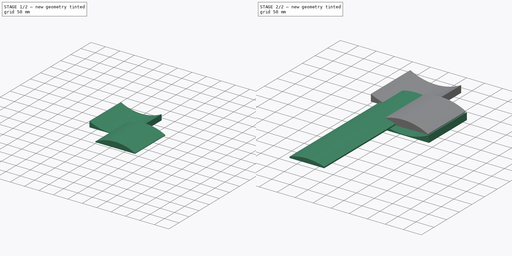
[diagram: build sequence overview — one tinted view per stage of 2, left to right]
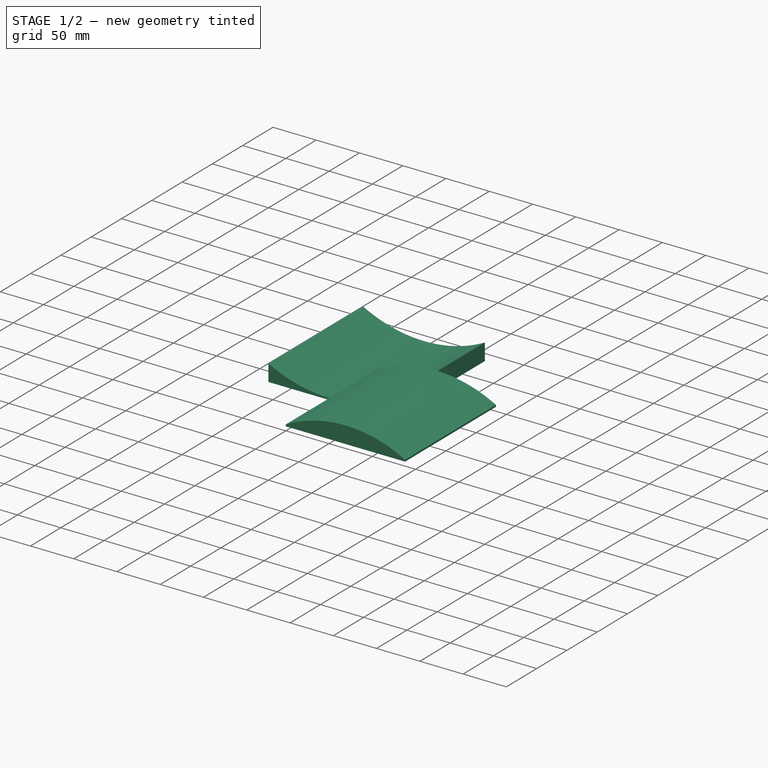
[diagram: stage 1 of 2 — iso view after this stage's code; geometry added in this stage tinted green]
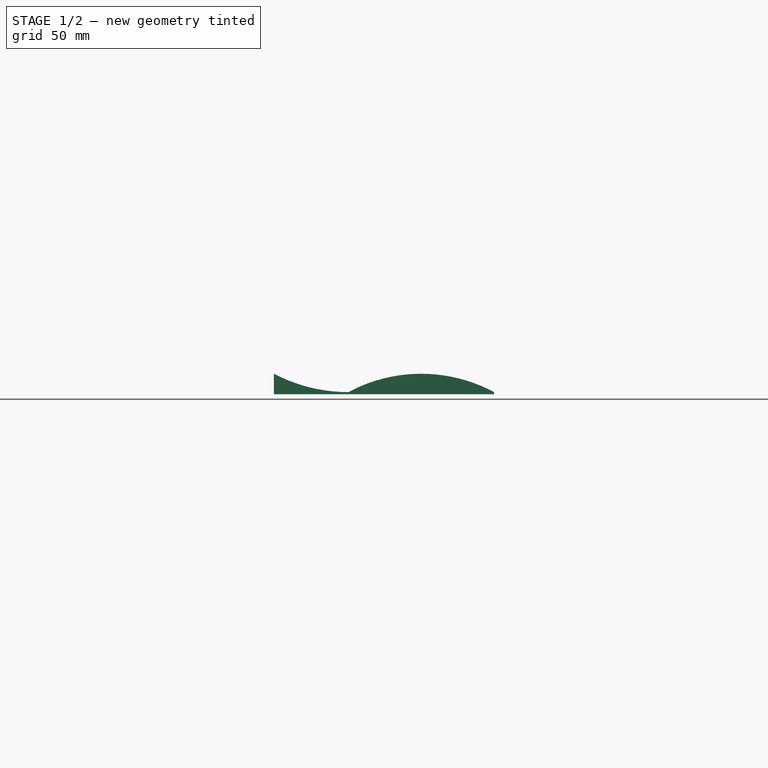
[diagram: stage 1 of 2 — front view after this stage's code; geometry added in this stage tinted green]
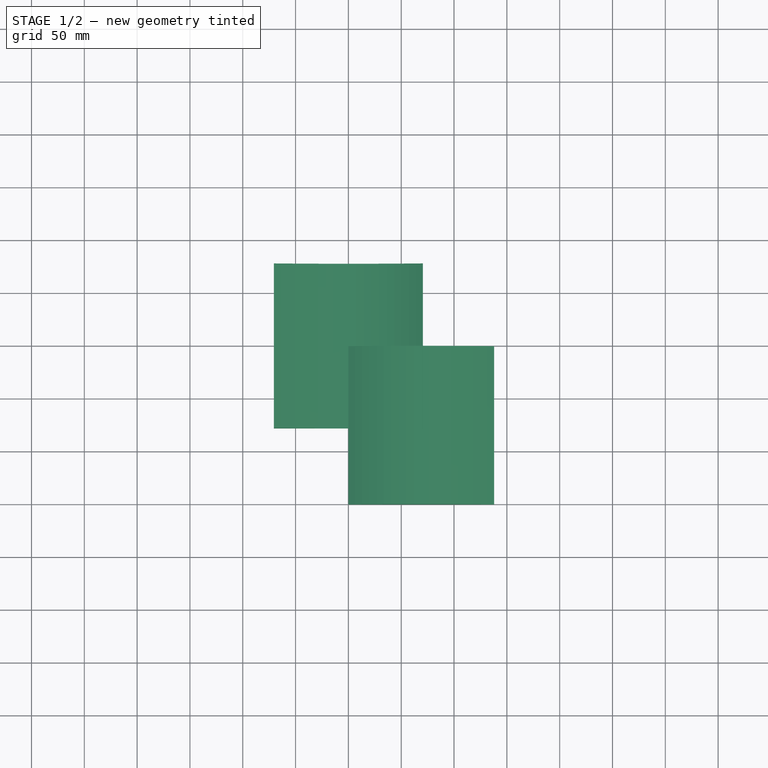
[diagram: stage 1 of 2 — top view after this stage's code; geometry added in this stage tinted green]
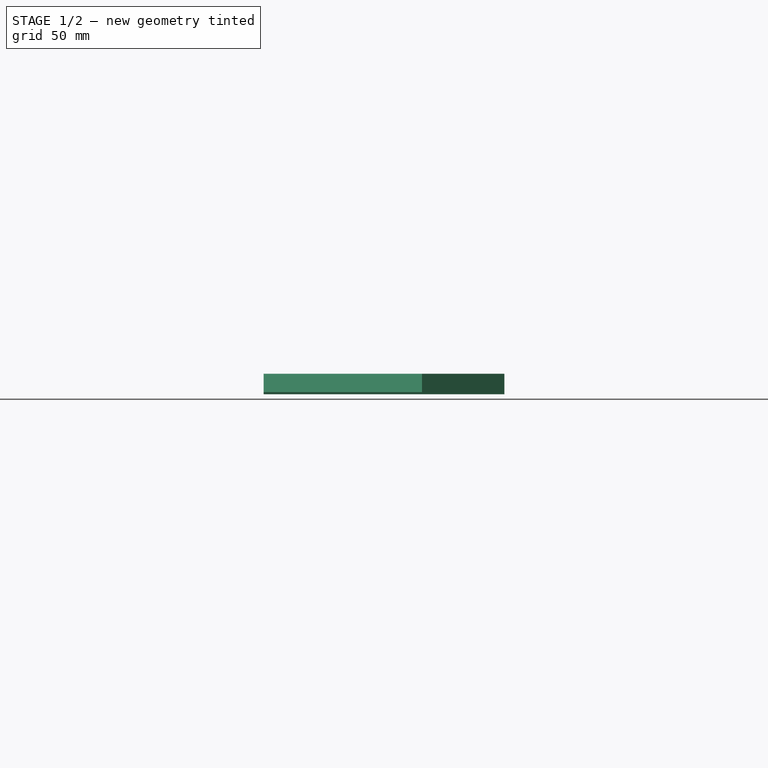
[diagram: stage 1 of 2 — right view after this stage's code; geometry added in this stage tinted green]
FCSTD DOCUMENT  (FreeCAD 0.19R24291 (Git))
Label: AnywhereAmps_Alpha_W170FR8MPT005
License: All rights reserved
LicenseURL: http://en.wikipedia.org/wiki/All_rights_reserved
objects: Part::Part2DObjectPython×20, Sketcher::SketchObject×19, PartDesign::Body×15, TechDraw::DrawViewDimension×14, Part::Feature×12, App::Part×6, TechDraw::DrawProjGroupItem×4, PartDesign::Pad×4, TechDraw::DrawSVGTemplate×2, TechDraw::DrawPage×2, Part::Mirroring×2, Part::FeaturePython×2, Spreadsheet::Sheet×1, TechDraw::DrawViewPart×1, TechDraw::DrawProjGroup×1, TechDraw::DrawViewAnnotation×1, PartDesign::FeatureBase×1, App::LinkGroup×1
note: 79 computed .brp shape members not serialized (recipe doc carries the construction recipe); baked Part::Feature solids carry a one-line shape summary decoded from their .brp
EXTERNAL_REF file=../../../../Zerspanobert/Projekte/Spoilboard/wasteplate_BL_0607.FCStd obj=Spreadsheet

FEATURE [Sketcher::SketchObject] Sketch076  label="outer_2D"
  ExternalGeometry = -> [Pad013]
  FullyConstrained = true
  MapMode = 5
  Support = -> [XY_Plane018]
  expr: Constraints[30] = <<Dimensions>>.shellfix_wid
  expr: Constraints[8] = <<Dimensions>>.shellfix_len
  expr: Constraints[23] = <<wasteplate_BL_0607>>#<<Dimensions>>.hammernut_sink_rad
  expr: Constraints[24] = wasteplate_BL_0607#<<Dimensions>>.hammernut_rad
  expr: Constraints[27] = <<wasteplate_BL_0607>>#<<Dimensions>>.hammernut_sink_rad * 2
  sketch-geometry (14):
    g0: LineSegment StartX=-91.5057 StartY=37 StartZ=0 EndX=232.494 EndY=37 EndZ=0
    g1: LineSegment StartX=232.494 StartY=37 StartZ=0 EndX=232.494 EndY=-187 EndZ=0
    g2: LineSegment StartX=232.494 StartY=-187 StartZ=0 EndX=-91.5057 EndY=-187 EndZ=0
    g3: LineSegment StartX=-91.5057 StartY=-187 StartZ=0 EndX=-91.5057 EndY=37 EndZ=0
    g4: LineSegment StartX=0 StartY=0 StartZ=0 EndX=140.989 EndY=-150 EndZ=0
    g5: GeomPoint X=70.4943 Y=-75 Z=0
    g6: Circle CenterX=70.4943 CenterY=19.8 CenterZ=0 NormalX=0 NormalY=0 NormalZ=1 AngleXU=0 Radius=8.6
    g7: Circle CenterX=70.4943 CenterY=-169.8 CenterZ=0 NormalX=0 NormalY=0 NormalZ=1 AngleXU=0 Radius=8.6
    g8: Circle CenterX=70.4943 CenterY=-169.8 CenterZ=0 NormalX=0 NormalY=0 NormalZ=1 AngleXU=0 Radius=3.1
    g9: Circle CenterX=70.4943 CenterY=19.8 CenterZ=0 NormalX=0 NormalY=0 NormalZ=1 AngleXU=0 Radius=3.1
    g10: LineSegment StartX=232.494 StartY=19.8 StartZ=0 EndX=-91.5057 EndY=19.8 EndZ=0
    g11: LineSegment StartX=-91.5057 StartY=-169.8 StartZ=0 EndX=232.494 EndY=-169.8 EndZ=0
    g12: GeomPoint X=-91.5057 Y=-75 Z=0
    g13: Circle CenterX=0 CenterY=-150 CenterZ=0 NormalX=0 NormalY=0 NormalZ=1 AngleXU=0 Radius=3
  constraints (32):
    c: Coincident(g0,g1)
    c: Coincident(g1,g2)
    c: Coincident(g2,g3)
    c: Coincident(g3,g0)
    c: Horizontal(g0)
    c: Horizontal(g2)
    c: Vertical(g1)
    c: Vertical(g3)
    c: DistanceY(g2,g0) = 224
    c: Coincident(g4,g-1)
    c: Coincident(g4,g-4)
    c: Symmetric(g-1,g4,g5)
    c: Symmetric(g0,g2,g5)
    c: Coincident(g8,g7)
    c: Coincident(g9,g6)
    c: PointOnObject(g10,g1)
    c: Horizontal(g10)
    c: PointOnObject(g11,g1)
    c: Horizontal(g11)
    c: Symmetric(g10,g10,g6)
    c: Symmetric(g0,g2,g12)
    c: Symmetric(g10,g11,g12)
    c: PointOnObject(g10,g3)
    c: Radius(g6) = 8.6
    c: Radius(g9) = 3.1
    c: Equal(g7,g6)
    c: Equal(g8,g9)
    c: DistanceY(g10,g0) = 17.2
    c: Coincident(g13,g-4)
    c: Radius(g13) = 3
    c: DistanceX(g0,g0) = 324
    c: Symmetric(g11,g11,g7)
FEATURE [PartDesign::Body] Body011  label="fixture_shell_outer"
  Group = -> [Sketch074,Pad013,Sketch076]
  Origin = -> Origin018
  Tip = -> Pad013
FEATURE [PartDesign::Pad] Pad014  label="inner_3D"
  Direction = (1,1,1)
  Length = 150
  Length2 = 100
  Placement = pos=(0,0,0) rot=(1,0,0;1.5708rad)
  Profile = -> Sketch075
  Type = 0
  expr: Length = <<Dimensions>>.shell_hei + 2
FEATURE [Sketcher::SketchObject] Sketch077  label="inner_2D"
  ExternalGeometry = -> [Pad014]
  FullyConstrained = true
  MapMode = 5
  Support = -> [XY_Plane019]
  expr: Constraints[3] = <<Dimensions>>.shellfix_len
  expr: Constraints[7] = wasteplate_BL_0607#<<Dimensions>>.hammernut_rad
  expr: Constraints[11] = <<wasteplate_BL_0607>>#<<Dimensions>>.hammernut_sink_rad * 2
  sketch-geometry (22):
    g0: LineSegment StartX=-11.0531 StartY=37 StartZ=0 EndX=148.947 EndY=37 EndZ=0
    g1: LineSegment StartX=148.947 StartY=-187 StartZ=0 EndX=-11.0531 EndY=-187 EndZ=0
    g2: GeomPoint X=68.9469 Y=-75 Z=0
    g3: LineSegment StartX=-11.0531 StartY=19.8 StartZ=0 EndX=148.947 EndY=19.8 EndZ=0
    g4: LineSegment StartX=-11.0531 StartY=-169.8 StartZ=0 EndX=148.947 EndY=-169.8 EndZ=0
    g5: Circle CenterX=68.9469 CenterY=19.8 CenterZ=0 NormalX=0 NormalY=0 NormalZ=1 AngleXU=0 Radius=3.1
    g6: Circle CenterX=68.9469 CenterY=-169.8 CenterZ=0 NormalX=0 NormalY=0 NormalZ=1 AngleXU=0 Radius=3.1
    g7: GeomPoint X=-11.0531 Y=-75 Z=0
    g8: Circle CenterX=0 CenterY=-150 CenterZ=0 NormalX=0 NormalY=0 NormalZ=1 AngleXU=0 Radius=3
    g9: GeomPoint X=68.9469 Y=-75 Z=0
    g10: LineSegment StartX=-11.0531 StartY=37 StartZ=0 EndX=-11.0531 EndY=0 EndZ=0
    g11: LineSegment StartX=148.947 StartY=37 StartZ=0 EndX=148.947 EndY=0 EndZ=0
    g12: LineSegment StartX=148.947 StartY=0 StartZ=0 EndX=137.894 EndY=0 EndZ=0
    g13: LineSegment StartX=137.894 StartY=0 StartZ=0 EndX=137.894 EndY=-150 EndZ=0
    g14: LineSegment StartX=137.894 StartY=-150 StartZ=0 EndX=148.947 EndY=-150 EndZ=0
    g15: LineSegment StartX=148.947 StartY=-150 StartZ=0 EndX=148.947 EndY=-187 EndZ=0
    g16: LineSegment StartX=-11.0531 StartY=0 StartZ=0 EndX=0 EndY=0 EndZ=0
    g17: LineSegment StartX=0 StartY=0 StartZ=0 EndX=0 EndY=-150 EndZ=0
    g18: LineSegment StartX=0 StartY=-150 StartZ=0 EndX=-11.0531 EndY=-150 EndZ=0
    g19: LineSegment StartX=-11.0531 StartY=-150 StartZ=0 EndX=-11.0531 EndY=-187 EndZ=0
    g20: LineSegment StartX=0 StartY=0 StartZ=0 EndX=137.894 EndY=0 EndZ=0
    g21: LineSegment StartX=0 StartY=-150 StartZ=0 EndX=137.894 EndY=-150 EndZ=0
  constraints (54):
    c: Horizontal(g0)
    c: Horizontal(g1)
    c: Symmetric(g-3,g-4,g2)
    c: DistanceY(g1,g0) = 224
    c: Horizontal(g3)
    c: Horizontal(g4)
    c: Equal(g5,g6)
    c: Radius(g5) = 3.1
    c: Symmetric(g3,g3,g5)
    c: Symmetric(g4,g4,g6)
    c: Symmetric(g3,g4,g7)
    c: DistanceY(g3,g0) = 17.2
    c: Coincident(g8,g-4)
    c: Radius(g8) = 3
    c: DistanceX(g0,g0) = 160
    c: Symmetric(g1,g0,g7)
    c: Symmetric(g0,g1,g9)
    c: Coincident(g10,g0)
    c: Vertical(g10)
    c: Coincident(g11,g0)
    c: Vertical(g11)
    c: Coincident(g12,g11)
    c: Coincident(g13,g12)
    c: Vertical(g13)
    c: Coincident(g14,g13)
    c: Coincident(g15,g14)
    c: Coincident(g15,g1)
    c: Vertical(g15)
    c: Coincident(g16,g10)
    c: Coincident(g17,g16)
    c: Coincident(g18,g17)
    c: Coincident(g19,g18)
    c: Coincident(g19,g1)
    c: Vertical(g19)
    c: Vertical(g17)
    c: Horizontal(g12)
    c: Equal(g16,g12)
    c: Equal(g12,g14)
    c: Equal(g14,g18)
    c: Equal(g17,g13)
    c: Horizontal(g14)
    c: Horizontal(g18)
    c: Horizontal(g16)
    c: PointOnObject(g3,g11)
    c: PointOnObject(g4,g15)
    c: Equal(g10,g11)
    c: Equal(g11,g15)
    c: Symmetric(g-4,g-1,g9)
    c: PointOnObject(g3,g10)
    c: Coincident(g16,g-1)
    c: Coincident(g20,g16)
    c: Coincident(g20,g12)
    c: Coincident(g21,g8)
    c: Coincident(g21,g13)
FEATURE [PartDesign::Body] Body012  label="fixture_shell_inner"
  Group = -> [Sketch075,Pad014,Sketch077]
  Origin = -> Origin019
  Tip = -> Pad014
FEATURE [Part::FeaturePython] Clone006  label="top_xy (2D) (mirrored)001"  # Draft clone (typed FeaturePython)
  AttacherType = Attacher::AttachEngine3D
  Fuse = false
  Objects = -> [mirror001]
  Placement = pos=(-444.939,-1056.68,0) rot=(0,0,1;1.5708rad)
  Scale = (1,1,1)
FEATURE [Part::FeaturePython] Clone007  label="nutzen001 (mirrored)001"  # Draft clone (typed FeaturePython)
  AttacherType = Attacher::AttachEngine3D
  Fuse = false
  Objects = -> [mirror]
  Placement = pos=(-444.939,-1056.68,0) rot=(0,0,1;1.5708rad)
  Scale = (1,1,1)
FEATURE [Sketcher::SketchObject] Sketch084
  FullyConstrained = true
  MapMode = 5
  Placement = pos=(0,0,0) rot=(1,0,0;1.5708rad)
  Support = -> [XZ_Plane020]
  expr: Constraints[12] = <<Dimensions>>.shellfix_thick_min
  expr: Constraints[13] = <<Dimensions>>.shellfix_thick
  expr: Constraints[14] = <<Dimensions>>.shell_outer_rad
  sketch-geometry (6):
    g0: LineSegment StartX=-70.4943 StartY=0 StartZ=0 EndX=70.4943 EndY=0 EndZ=0
    g1: LineSegment StartX=-70.4943 StartY=0 StartZ=0 EndX=-70.4943 EndY=19.4 EndZ=0
    g2: LineSegment StartX=70.4943 StartY=0 StartZ=0 EndX=70.4943 EndY=19.4 EndZ=0
    g3: ArcOfCircle CenterX=0 CenterY=153.5 CenterZ=0 NormalX=0 NormalY=0 NormalZ=1 AngleXU=0 Radius=151.5 StartAngle=4.22841 EndAngle=5.19637
    g4: LineSegment StartX=0 StartY=0 StartZ=0 EndX=0 EndY=153.5 EndZ=0
    g5: GeomPoint X=0 Y=2 Z=0
  constraints (16):
    c: Horizontal(g0)
    c: Coincident(g1,g0)
    c: Coincident(g2,g0)
    c: Vertical(g2)
    c: Vertical(g1)
    c: Coincident(g3,g1)
    c: Coincident(g3,g2)
    c: Vertical(g4)
    c: Coincident(g4,g3)
    c: Symmetric(g0,g0,g4)
    c: PointOnObject(g5,g4)
    c: PointOnObject(g5,g3)
    c: DistanceY(g4,g5) = 2
    c: DistanceY(g0,g1) = 19.4
    c: Radius(g3) = 151.5
    c: Coincident(g4,g-1)
FEATURE [Sketcher::SketchObject] Sketch078
  ExternalGeometry = -> [Sketch084]
  FullyConstrained = true
  MapMode = 5
  Support = -> [XY_Plane020]
  expr: Constraints[28] = <<wasteplate_BL_0607>>#<<Dimensions>>.sink_rad
  expr: Constraints[22] = wasteplate_BL_0607#<<Dimensions>>.hole_rad
  expr: Constraints[40] = <<Dimensions>>.shellfix_len
  sketch-geometry (22):
    g0: Circle CenterX=1e-16 CenterY=-7.21876 CenterZ=0 NormalX=0 NormalY=0 NormalZ=1 AngleXU=0 Radius=30
    g1: ArcOfCircle CenterX=1e-16 CenterY=-7.21876 CenterZ=0 NormalX=0 NormalY=0 NormalZ=1 AngleXU=0 Radius=80.5 StartAngle=5.32063 EndAngle=10.3873
    g2: LineSegment StartX=-46 StartY=-73.2812 StartZ=0 EndX=46 EndY=-73.2812 EndZ=0
    g3: Circle CenterX=1e-16 CenterY=-7.21876 CenterZ=0 NormalX=0 NormalY=0 NormalZ=1 AngleXU=0 Radius=67.5
    g4: Circle CenterX=67.122 CenterY=-14.3525 CenterZ=0 NormalX=0 NormalY=0 NormalZ=1 AngleXU=0 Radius=3.1
    g5: Circle CenterX=-39.739 CenterY=-61.7812 CenterZ=0 NormalX=0 NormalY=0 NormalZ=1 AngleXU=0 Radius=3.1
    g6: Circle CenterX=-27.383 CenterY=54.4774 CenterZ=0 NormalX=0 NormalY=0 NormalZ=1 AngleXU=0 Radius=3.1
    g7: LineSegment StartX=-27.383 StartY=54.4774 StartZ=0 EndX=-39.739 EndY=-61.7812 EndZ=0
    g8: LineSegment StartX=-39.739 StartY=-61.7812 StartZ=0 EndX=67.122 EndY=-14.3525 EndZ=0
    g9: LineSegment StartX=67.122 StartY=-14.3525 StartZ=0 EndX=-27.383 EndY=54.4774 EndZ=0
    g10: Circle CenterX=67.122 CenterY=-14.3525 CenterZ=0 NormalX=0 NormalY=0 NormalZ=1 AngleXU=0 Radius=8
    g11: Circle CenterX=-27.383 CenterY=54.4774 CenterZ=0 NormalX=0 NormalY=0 NormalZ=1 AngleXU=0 Radius=8
    g12: Circle CenterX=-39.739 CenterY=-61.7812 CenterZ=0 NormalX=0 NormalY=0 NormalZ=1 AngleXU=0 Radius=8
    g13: LineSegment StartX=-112 StartY=78 StartZ=0 EndX=112 EndY=78 EndZ=0
    g14: LineSegment StartX=112 StartY=78 StartZ=0 EndX=112 EndY=-78 EndZ=0
    g15: LineSegment StartX=112 StartY=-78 StartZ=0 EndX=-112 EndY=-78 EndZ=0
    g16: LineSegment StartX=-112 StartY=-78 StartZ=0 EndX=-112 EndY=78 EndZ=0
    g17: GeomPoint X=9e-16 Y=78 Z=0
    g18: Circle CenterX=-70.4943 CenterY=-78 CenterZ=0 NormalX=0 NormalY=0 NormalZ=1 AngleXU=0 Radius=3
    g19: LineSegment StartX=0 StartY=-73.2812 StartZ=0 EndX=0 EndY=73.2812 EndZ=0
    g20: GeomPoint X=0 Y=0 Z=0
    g21: LineSegment StartX=-70.4943 StartY=-4.3e-15 StartZ=0 EndX=-70.4943 EndY=-78 EndZ=0
  constraints (52):
    c: Radius(g0) = 30
    c: Coincident(g1,g0)
    c: Radius(g1) = 80.5
    c: Horizontal(g2)
    c: Coincident(g2,g1)
    c: Coincident(g2,g1)
    c: DistanceX(g1,g1) = 92
    c: Coincident(g3,g0)
    c: Radius(g3) = 67.5
    c: PointOnObject(g4,g3)
    c: PointOnObject(g5,g3)
    c: PointOnObject(g6,g3)
    c: Equal(g6,g5)
    c: Equal(g5,g4)
    c: Coincident(g7,g6)
    c: Coincident(g7,g5)
    c: Coincident(g8,g5)
    c: Coincident(g8,g4)
    c: Coincident(g9,g4)
    c: Coincident(g9,g6)
    c: Equal(g7,g9)
    c: Equal(g9,g8)
    c: Radius(g5) = 3.1
    c: Coincident(g10,g4)
    c: Coincident(g11,g6)
    c: Coincident(g12,g5)
    c: Equal(g11,g10)
    c: Equal(g10,g12)
    c: Radius(g12) = 8
    c: Coincident(g13,g14)
    c: Coincident(g14,g15)
    c: Coincident(g15,g16)
    c: Coincident(g16,g13)
    c: Horizontal(g13)
    c: Horizontal(g15)
    c: Vertical(g14)
    c: Vertical(g16)
    c: DistanceY(g16,g16) = 156
    c: Symmetric(g13,g13,g17)
    c: Radius(g18) = 3
    c: DistanceX(g13,g13) = 224
    c: PointOnObject(g19,g1)
    c: Vertical(g19)
    c: Symmetric(g1,g1,g19)
    c: Symmetric(g19,g19,g20)
    c: Symmetric(g13,g14,g20)
    c: Coincident(g20,g-1)
    c: PointOnObject(g18,g15)
    c: Coincident(g21,g-3)
    c: Vertical(g21)
    c: Coincident(g21,g18)
    c: DistanceY(g1,g5) = 11.5
FEATURE [PartDesign::Pad] Pad017
  Direction = (1,1,1)
  Length = 156
  Length2 = 100
  Midplane = true
  Placement = pos=(0,0,0) rot=(1,0,0;1.5708rad)
  Profile = -> Sketch084
  Type = 0
FEATURE [PartDesign::Body] Body013  label="fixture_shell_router"
  Group = -> [Sketch078,Sketch084,Pad017]
  Origin = -> Origin020
  Tip = -> Pad017
FEATURE [App::Part] Part001  label="Fixtures"
  Group = -> [Body007,Body011,Body012,Body013]
  Origin = -> Origin012
FEATURE [Sketcher::SketchObject] Sketch085  label="Icons"
  ExternalGeometry = -> [Sketch036]
  FullyConstrained = false
  MapMode = 5
  Support = -> [XY_Plane003]
  sketch-geometry (35):
    g0: LineSegment StartX=15.3207 StartY=76.4001 StartZ=0 EndX=15.8207 EndY=76.4001 EndZ=0
    g1: LineSegment StartX=15.8207 StartY=76.4001 StartZ=0 EndX=15.8207 EndY=74.9001 EndZ=0
    g2: LineSegment StartX=15.8207 StartY=74.9001 StartZ=0 EndX=15.3207 EndY=74.9001 EndZ=0
    g3: LineSegment StartX=15.3207 StartY=74.9001 StartZ=0 EndX=15.3207 EndY=76.4001 EndZ=0
    g4: LineSegment StartX=15.8207 StartY=76.4001 StartZ=0 EndX=16.4207 EndY=76.9001 EndZ=0
    g5: LineSegment StartX=15.8207 StartY=74.9001 StartZ=0 EndX=16.4207 EndY=74.4001 EndZ=0
    g6: LineSegment StartX=16.4207 StartY=74.4001 StartZ=0 EndX=16.4207 EndY=76.9001 EndZ=0
    g7: LineSegment StartX=15.3207 StartY=75.6501 StartZ=0 EndX=16.4207 EndY=75.6501 EndZ=0
    g8: LineSegment StartX=15.8707 StartY=85.1999 StartZ=0 EndX=16.3707 EndY=85.1999 EndZ=0
    g9: LineSegment StartX=16.3707 StartY=85.1999 StartZ=0 EndX=16.3707 EndY=83.6999 EndZ=0
    g10: LineSegment StartX=16.3707 StartY=83.6999 StartZ=0 EndX=15.8707 EndY=83.6999 EndZ=0
    g11: LineSegment StartX=15.8707 StartY=83.6999 StartZ=0 EndX=15.8707 EndY=85.1999 EndZ=0
    g12: LineSegment StartX=16.3707 StartY=85.1999 StartZ=0 EndX=16.9707 EndY=85.6999 EndZ=0
    g13: LineSegment StartX=16.3707 StartY=83.6999 StartZ=0 EndX=16.9707 EndY=83.1999 EndZ=0
    g14: LineSegment StartX=16.9707 StartY=83.1999 StartZ=0 EndX=16.9707 EndY=85.6999 EndZ=0
    g15: LineSegment StartX=15.8707 StartY=84.4499 StartZ=0 EndX=16.9707 EndY=84.4499 EndZ=0
    g16: LineSegment StartX=17.6707 StartY=85.6999 StartZ=0 EndX=15.1707 EndY=83.1999 EndZ=0
    g17: LineSegment StartX=15.1707 StartY=85.6999 StartZ=0 EndX=17.6707 EndY=83.1999 EndZ=0
    g18: GeomPoint X=16.4207 Y=84.4499 Z=0
    g19: LineSegment StartX=15.1707 StartY=83.1999 StartZ=0 EndX=17.6707 EndY=83.1999 EndZ=0
    g20: LineSegment StartX=16.9707 StartY=85.6999 StartZ=0 EndX=17.6707 EndY=85.6999 EndZ=0
    g21: ArcOfCircle CenterX=15.3207 CenterY=75.6501 CenterZ=0 NormalX=0 NormalY=0 NormalZ=1 AngleXU=0 Radius=2 StartAngle=5.89879 EndAngle=6.66758
    g22: LineSegment StartX=17.1748 StartY=76.4001 StartZ=0 EndX=17.1748 EndY=74.9001 EndZ=0
    g23: Circle CenterX=12.0208 CenterY=92.0708 CenterZ=0 NormalX=0 NormalY=0 NormalZ=1 AngleXU=0 Radius=1.25
    g24: LineSegment StartX=12.0208 StartY=93.5708 StartZ=0 EndX=12.0208 EndY=92.0708 EndZ=0
    g25: LineSegment StartX=12.0208 StartY=92.0708 StartZ=0 EndX=0 EndY=80.05 EndZ=0
    g26: LineSegment StartX=0 StartY=80.05 StartZ=0 EndX=16.4207 EndY=84.4499 EndZ=0
    g27: LineSegment StartX=16.4207 StartY=75.6501 StartZ=0 EndX=0 EndY=80.05 EndZ=0
    g28: Circle CenterX=0 CenterY=80.05 CenterZ=0 NormalX=0 NormalY=0 NormalZ=1 AngleXU=0 Radius=17
    g29: LineSegment StartX=-5.16556 StartY=112.005 StartZ=0 EndX=-3.29057 EndY=110.922 EndZ=0
    g30: LineSegment StartX=-3.29057 StartY=110.922 StartZ=0 EndX=-5.16556 EndY=109.84 EndZ=0
    g31: LineSegment StartX=-5.16556 StartY=112.005 StartZ=0 EndX=-5.16556 EndY=109.84 EndZ=0
    g32: GeomPoint X=-5.16556 Y=110.922 Z=0
    g33: LineSegment StartX=-5.16556 StartY=110.922 StartZ=0 EndX=14.2446 EndY=110.922 EndZ=0
    g34: Circle CenterX=-4.54057 CenterY=110.922 CenterZ=0 NormalX=0 NormalY=0 NormalZ=1 AngleXU=0 Radius=1.25
  constraints (87):
    c: Coincident(g0,g1)
    c: Coincident(g1,g2)
    c: Coincident(g2,g3)
    c: Coincident(g3,g0)
    c: Horizontal(g0)
    c: Horizontal(g2)
    c: Vertical(g1)
    c: Vertical(g3)
    c: Coincident(g4,g0)
    c: Coincident(g5,g1)
    c: Coincident(g6,g5)
    c: Coincident(g6,g4)
    c: Horizontal(g7)
    c: Symmetric(g4,g5,g7)
    c: Symmetric(g0,g2,g7)
    c: Vertical(g6)
    c: DistanceX(g0,g0) = 0.5
    c: DistanceY(g3,g3) = 1.5
    c: DistanceY(g5,g4) = 2.5
    c: DistanceX(g7,g7) = 1.1
    c: Coincident(g8,g9)
    c: Coincident(g9,g10)
    c: Coincident(g10,g11)
    c: Coincident(g11,g8)
    c: Horizontal(g8)
    c: Horizontal(g10)
    c: Vertical(g9)
    c: Vertical(g11)
    c: Coincident(g12,g8)
    c: Coincident(g13,g9)
    c: Coincident(g14,g13)
    c: Coincident(g14,g12)
    c: Horizontal(g15)
    c: Symmetric(g12,g13,g15)
    c: Symmetric(g8,g10,g15)
    c: Vertical(g14)
    c: Equal(g0,g8) = 0.5
    c: Equal(g3,g11) = 1.5
    c: DistanceY(g13,g12) = 2.5
    c: Equal(g7,g15) = 1.1
    c: Perpendicular(g16,g17)
    c: Equal(g17,g16)
    c: Symmetric(g17,g17,g18)
    c: Symmetric(g16,g16,g18)
    c: Coincident(g19,g16)
    c: Coincident(g19,g17)
    c: Horizontal(g19)
    c: Symmetric(g15,g15,g18)
    c: Coincident(g20,g12)
    c: Coincident(g20,g16)
    c: Horizontal(g20)
    c: Coincident(g21,g7)
    c: Coincident(g22,g21)
    c: Coincident(g22,g21)
    c: Vertical(g22)
    c: Radius(g21) = 2
    c: Vertical(g24)
    c: Radius(g23) = 1.25
    c: Coincident(g24,g23)
    c: DistanceY(g23,g24) = 1.5
    c: Coincident(g25,g23)
    c: Coincident(g26,g25)
    c: Coincident(g26,g18)
    c: Coincident(g25,g-3)
    c: Coincident(g27,g25)
    c: Coincident(g27,g7)
    c: Coincident(g28,g25)
    c: PointOnObject(g23,g28)
    c: PointOnObject(g7,g28)
    c: PointOnObject(g18,g28)
    c: Angle(g27,g26) = 0.523599
    c: Radius(g28) = 17
    c: Coincident(g31,g30)
    c: Vertical(g31)
    c: Coincident(g29,g31)
    c: Symmetric(g30,g29,g32)
    c: Coincident(g33,g32)
    c: Horizontal(g33)
    c: Coincident(g33,g-4)
    c: Coincident(g30,g29)
    c: PointOnObject(g29,g33)
    c: Equal(g29,g31)
    c: PointOnObject(g29,g34)
    c: PointOnObject(g30,g34)
    c: PointOnObject(g29,g34)
    c: Radius(g34) = 1.25
    c: Equal(g22,g1)
FEATURE [PartDesign::Body] Body002  label="ampcarrier"
  Group = -> [Sketch036,Sketch085]
  Origin = -> Origin003
  Placement = pos=(0,-800,0) rot=(0,0,1;0rad)
FEATURE [Part::Part2DObjectPython] Clone2D019  label="Icons (2D)"  # Draft 2D object (typed FeaturePython)
  Fuse = false
  Objects = -> [Sketch085]
  Placement = pos=(228,-1550,0) rot=(0,0,1;0rad)
  Scale = (1,1,1)
FEATURE [PartDesign::Body] Body008  label="nutzen_bottom"
  Group = -> [Sketch069,Clone2D001,Clone2D002,Clone2D003,Clone2D004,Clone2D005,Clone2D006,Clone2D007,Clone2D008,Clone2D009,Clone2D019,Clone2D011,Clone2D013,Clone2D015,Clone2D016,Clone2D010]
  Origin = -> Origin009
FEATURE [App::Part] Part003  label="Job02"
  Group = -> [Body008,mirror001,Clone2D,mirror,Clone2D012]
  Origin = -> Origin014
FEATURE [Sketcher::SketchObject] Sketch086  label="clampingOptions"
  FullyConstrained = false
  MapMode = 5
  Support = -> [XY_Plane025]
  sketch-geometry (31):
    g0: ArcOfCircle CenterX=0 CenterY=0 CenterZ=0 NormalX=0 NormalY=0 NormalZ=1 AngleXU=0 Radius=15 StartAngle=4.71239 EndAngle=6.28319
    g1: GeomPoint X=7.5 Y=-7.5 Z=0
    g2: LineSegment StartX=0 StartY=0 StartZ=0 EndX=10.6066 EndY=-10.6066 EndZ=0
    g3: Circle CenterX=10.6066 CenterY=-10.6066 CenterZ=0 NormalX=0 NormalY=0 NormalZ=1 AngleXU=0 Radius=3
    g4: ArcOfCircle CenterX=0 CenterY=0 CenterZ=0 NormalX=0 NormalY=0 NormalZ=1 AngleXU=0 Radius=100 StartAngle=4.71239 EndAngle=6.28319
    g5: LineSegment StartX=10.6066 StartY=-10.6066 StartZ=0 EndX=99.4359 EndY=-10.6066 EndZ=0
    g6: LineSegment StartX=10.6066 StartY=-10.6066 StartZ=0 EndX=10.6066 EndY=-99.4359 EndZ=0
    g7: LineSegment StartX=0 StartY=0 StartZ=0 EndX=90.1455 EndY=-43.2873 EndZ=0
    g8: LineSegment StartX=10.6066 StartY=-10.6066 StartZ=0 EndX=71.917 EndY=-69.4834 EndZ=0
    g9: LineSegment StartX=0 StartY=0 StartZ=0 EndX=44.8383 EndY=-89.3841 EndZ=0
    g10: LineSegment StartX=99.4359 StartY=-10.6066 StartZ=0 EndX=629.936 EndY=-10.6066 EndZ=0
    g11: LineSegment StartX=10.6066 StartY=-99.4359 StartZ=0 EndX=10.6066 EndY=-602.436 EndZ=0
    g12: LineSegment StartX=44.8383 StartY=-89.3841 StartZ=0 EndX=305.125 EndY=-608.259 EndZ=0
    g13: LineSegment StartX=71.917 StartY=-69.4834 StartZ=0 EndX=622.035 EndY=-597.765 EndZ=0
    g14: LineSegment StartX=90.1455 StartY=-43.2873 StartZ=0 EndX=634.895 EndY=-304.872 EndZ=0
    g15: Circle CenterX=197.297 CenterY=-10.6066 CenterZ=0 NormalX=0 NormalY=0 NormalZ=1 AngleXU=0 Radius=3
    g16: Circle CenterX=426.131 CenterY=-10.6066 CenterZ=0 NormalX=0 NormalY=0 NormalZ=1 AngleXU=0 Radius=3
    g17: Circle CenterX=159.976 CenterY=-154.047 CenterZ=0 NormalX=0 NormalY=0 NormalZ=1 AngleXU=0 Radius=3
    g18: Circle CenterX=158.635 CenterY=-316.235 CenterZ=0 NormalX=0 NormalY=0 NormalZ=1 AngleXU=0 Radius=3
    g19: Circle CenterX=340.522 CenterY=-327.427 CenterZ=0 NormalX=0 NormalY=0 NormalZ=1 AngleXU=0 Radius=3
    g20: Circle CenterX=489.034 CenterY=-234.831 CenterZ=0 NormalX=0 NormalY=0 NormalZ=1 AngleXU=0 Radius=3
    g21: Circle CenterX=583.933 CenterY=-561.175 CenterZ=0 NormalX=0 NormalY=0 NormalZ=1 AngleXU=0 Radius=3
    g22: Circle CenterX=10.6066 CenterY=-447.489 CenterZ=0 NormalX=0 NormalY=0 NormalZ=1 AngleXU=0 Radius=3
    g23: Circle CenterX=197.297 CenterY=-10.6066 CenterZ=0 NormalX=0 NormalY=0 NormalZ=1 AngleXU=0 Radius=8
    g24: Circle CenterX=426.131 CenterY=-10.6066 CenterZ=0 NormalX=0 NormalY=0 NormalZ=1 AngleXU=0 Radius=8
    g25: Circle CenterX=489.034 CenterY=-234.831 CenterZ=0 NormalX=0 NormalY=0 NormalZ=1 AngleXU=0 Radius=8
    g26: Circle CenterX=159.976 CenterY=-154.047 CenterZ=0 NormalX=0 NormalY=0 NormalZ=1 AngleXU=0 Radius=8
    g27: Circle CenterX=10.6066 CenterY=-447.489 CenterZ=0 NormalX=0 NormalY=0 NormalZ=1 AngleXU=0 Radius=8
    g28: Circle CenterX=583.933 CenterY=-561.175 CenterZ=0 NormalX=0 NormalY=0 NormalZ=1 AngleXU=0 Radius=8
    g29: Circle CenterX=340.522 CenterY=-327.427 CenterZ=0 NormalX=0 NormalY=0 NormalZ=1 AngleXU=0 Radius=8
    g30: Circle CenterX=158.635 CenterY=-316.235 CenterZ=0 NormalX=0 NormalY=0 NormalZ=1 AngleXU=0 Radius=8
  constraints (75):
    c: Coincident(g0,g-1)
    c: PointOnObject(g0,g-1)
    c: PointOnObject(g0,g-2)
    c: Symmetric(g0,g0,g1)
    c: Radius(g0) = 15
    c: Coincident(g2,g0)
    c: PointOnObject(g1,g2)
    c: Radius(g3) = 3
    c: Coincident(g4,g-1)
    c: PointOnObject(g4,g-1)
    c: PointOnObject(g4,g-2)
    c: Radius(g4) = 100
    c: Horizontal(g5)
    c: Vertical(g6)
    c: Coincident(g10,g5)
    c: Horizontal(g10)
    c: Coincident(g11,g6)
    c: Vertical(g11)
    c: PointOnObject(g9,g4)
    c: PointOnObject(g8,g4)
    c: PointOnObject(g7,g4)
    c: Angle(g7,g5) = 0.447677
    c: Angle(g8,g5) = 0.765152
    c: Angle(g9,g5) = 1.10584
    c: PointOnObject(g11,g4)
    c: PointOnObject(g10,g4)
    c: Coincident(g12,g9)
    c: Coincident(g13,g8)
    c: Coincident(g14,g7)
    c: Parallel(g8,g13)
    c: Parallel(g14,g7)
    c: Parallel(g12,g9)
    c: DistanceX(g10,g10) = 530.5
    c: Distance(g14,g14) = 604.3
    c: Distance(g13,g13) = 762.7
    c: Distance(g12,g12) = 580.5
    c: DistanceY(g11,g11) = 503
    c: PointOnObject(g15,g10)
    c: PointOnObject(g16,g10)
    c: PointOnObject(g17,g13)
    c: PointOnObject(g18,g12)
    c: PointOnObject(g19,g13)
    c: PointOnObject(g20,g14)
    c: PointOnObject(g21,g13)
    c: PointOnObject(g22,g11)
    c: Radius(g22) = 3
    c: Equal(g18,g19)
    c: Equal(g19,g21)
    c: Equal(g21,g15)
    c: Equal(g15,g16)
    c: Equal(g16,g20)
    c: Coincident(g23,g15)
    c: Coincident(g24,g16)
    c: Coincident(g25,g20)
    c: Coincident(g26,g17)
    c: Coincident(g27,g22)
    c: Coincident(g28,g21)
    c: Coincident(g29,g19)
    c: Radius(g27) = 8
    c: Equal(g29,g26)
    c: Equal(g26,g23)
    c: Equal(g23,g24)
    c: Equal(g24,g25)
    c: Equal(g25,g28)
    c: Equal(g17,g22)
    c: Coincident(g30,g18)
    c: Equal(g30,g27)
    c: PointOnObject(g3,g0)
    c: Coincident(g2,g3)
    c: Coincident(g-1,g7)
    c: Coincident(g9,g-1)
    c: Coincident(g6,g5)
    c: Coincident(g6,g8)
    c: Coincident(g6,g3)
    c: Equal(g26,g27)
FEATURE [Part::Part2DObjectPython] Clone2D020  label="master_nutzen (2D)"  # Draft 2D object (typed FeaturePython)
  Fuse = false
  Objects = -> [Sketch069]
  Placement = pos=(311,1075.81,0) rot=(0,0,1;0rad)
  Scale = (1,1,1)
FEATURE [PartDesign::Body] Body015
  Group = -> [Sketch086,Clone2D020]
  Origin = -> Origin025
FEATURE [App::Part] Part007  label="Job00"
  Group = -> [Body015]
  Origin = -> Origin024
  Placement = pos=(0,-1075.81,0) rot=(0,0,1;0rad)
FEATURE [Sketcher::SketchObject] Sketch087
  FullyConstrained = false
  MapMode = 5
  Support = -> [XY_Plane029]
  expr: Constraints[22] = <<Dimensions>>.usb_board_len
  expr: Constraints[21] = <<Dimensions>>.usb_board_wid
  expr: Constraints[11] = <<Dimensions>>.usb_rec_wid
  expr: Constraints[10] = <<Dimensions>>.usb_rec_len
  expr: Constraints[6] = <<Dimensions>>.usb_part_rad
  sketch-geometry (11):
    g0: Circle CenterX=446.372 CenterY=122.302 CenterZ=0 NormalX=0 NormalY=0 NormalZ=1 AngleXU=0 Radius=10
    g1: ArcOfCircle CenterX=443.472 CenterY=122.302 CenterZ=0 NormalX=0 NormalY=0 NormalZ=1 AngleXU=0 Radius=1.6 StartAngle=1.5708 EndAngle=4.71239
    g2: ArcOfCircle CenterX=449.272 CenterY=122.302 CenterZ=0 NormalX=0 NormalY=0 NormalZ=1 AngleXU=0 Radius=1.6 StartAngle=4.71239 EndAngle=7.85398
    g3: LineSegment StartX=443.472 StartY=120.702 StartZ=0 EndX=449.272 EndY=120.702 EndZ=0
    g4: LineSegment StartX=443.472 StartY=123.902 StartZ=0 EndX=449.272 EndY=123.902 EndZ=0
    g5: LineSegment StartX=441.872 StartY=122.302 StartZ=0 EndX=450.872 EndY=122.302 EndZ=0
    g6: LineSegment StartX=453.872 StartY=120.702 StartZ=0 EndX=438.872 EndY=120.702 EndZ=0
    g7: LineSegment StartX=438.872 StartY=120.702 StartZ=0 EndX=438.872 EndY=119.702 EndZ=0
    g8: LineSegment StartX=438.872 StartY=119.702 StartZ=0 EndX=453.872 EndY=119.702 EndZ=0
    g9: LineSegment StartX=453.872 StartY=119.702 StartZ=0 EndX=453.872 EndY=120.702 EndZ=0
    g10: GeomPoint X=446.372 Y=120.702 Z=0
  constraints (26):
    c: Tangent(g1,g4) = 1.5708
    c: Tangent(g1,g3) = -1.5708
    c: Tangent(g3,g2) = -1.5708
    c: Tangent(g4,g2) = 1.5708
    c: Horizontal(g3)
    c: Equal(g1,g2)
    c: Radius(g0) = 10
    c: PointOnObject(g5,g1)
    c: Horizontal(g5)
    c: PointOnObject(g1,g5)
    c: DistanceX(g5,g5) = 9
    c: DistanceY(g1,g1) = 3.2
    c: PointOnObject(g5,g2)
    c: Coincident(g6,g7)
    c: Coincident(g7,g8)
    c: Coincident(g8,g9)
    c: Coincident(g9,g6)
    c: Horizontal(g6)
    c: Horizontal(g8)
    c: Vertical(g7)
    c: Vertical(g9)
    c: DistanceX(g7,g8) = 15
    c: DistanceY(g7,g6) = 1
    c: Symmetric(g6,g6,g10)
    c: Symmetric(g2,g1,g10)
    c: Symmetric(g1,g2,g0)
FEATURE [PartDesign::Body] Body017  label="usb-pd"
  Group = -> [Sketch087]
  Origin = -> Origin029
FEATURE [App::Part] Part  label="2D"
  Group = -> [Body,Body001,Body002,Body003,Body004,Body005,Body010,Body017]
  Origin = -> Origin
FEATURE [Part::Feature] path2002
  shape: bbox 22.55 x 26.33 x 2e-07 mm, 0 faces, 0 solids (baked)
FEATURE [Part::Feature] path2003
  shape: bbox 37.01 x 76.81 x 2e-07 mm, 0 faces, 0 solids (baked)
FEATURE [Part::Feature] path4001
  shape: bbox 12.63 x 13.37 x 2e-07 mm, 0 faces, 0 solids (baked)
FEATURE [Part::Feature] path8001
  shape: bbox 12.32 x 13.1 x 2e-07 mm, 0 faces, 0 solids (baked)
FEATURE [Part::Feature] path2004
  shape: bbox 22.55 x 26.33 x 2e-07 mm, 0 faces, 0 solids (baked)
FEATURE [Part::Feature] path2005
  shape: bbox 37.01 x 76.81 x 2e-07 mm, 0 faces, 0 solids (baked)
FEATURE [Part::Feature] path4002
  shape: bbox 12.63 x 13.37 x 2e-07 mm, 0 faces, 0 solids (baked)
FEATURE [Part::Feature] path8002
  shape: bbox 12.49 x 13.07 x 2e-07 mm, 0 faces, 0 solids (baked)
FEATURE [App::LinkGroup] LinkGroup001  label="Logo2mm"
  ElementList = -> [path2004,path2005,path4002,path8002]
  LinkMode = 0
  Placement = pos=(751.622,-1360.21,0) rot=(0,0,1;0rad)
FEATURE [App::Part] Part005  label="Job03"
  Group = -> [path2001,path4,path8,path2,Clone006,LinkGroup001,path4001,path2003,path2002,path8001]
  Origin = -> Origin017
FEATURE [Part::Part2DObjectPython] Clone2D021  label="usb_pd"  # Draft 2D object (typed FeaturePython)
  Fuse = false
  Objects = -> [Sketch087]
  Placement = pos=(39.4239,-1266.92,0) rot=(0,0,1;0rad)
  Scale = (1,1,1)
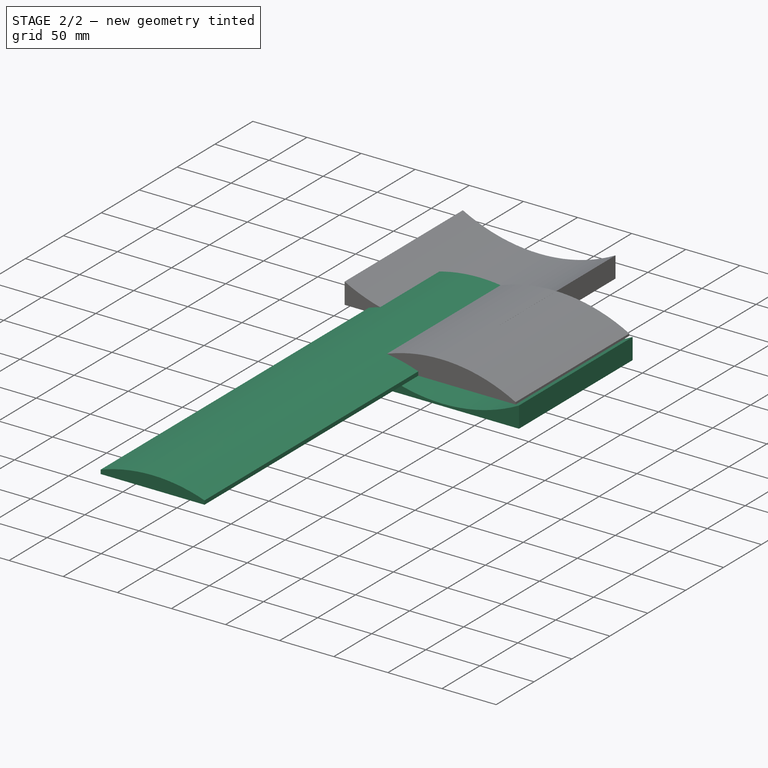
[diagram: stage 2 of 2 — iso view after this stage's code; geometry added in this stage tinted green]
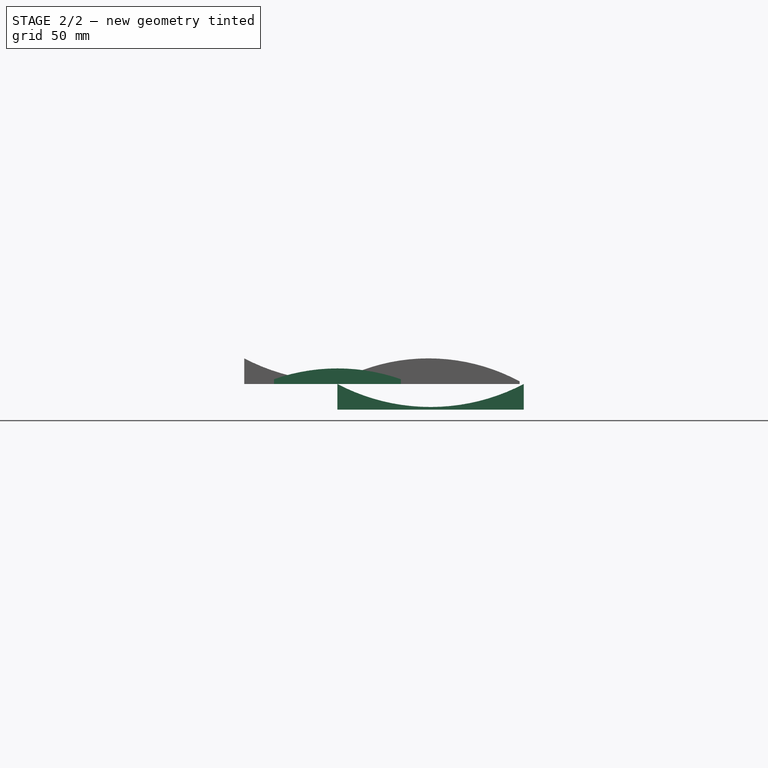
[diagram: stage 2 of 2 — front view after this stage's code; geometry added in this stage tinted green]
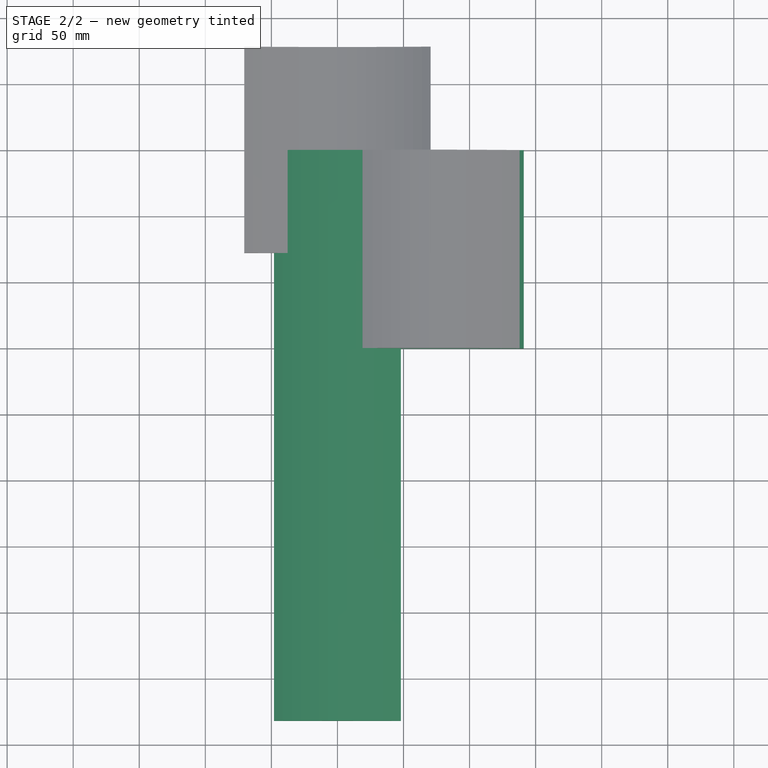
[diagram: stage 2 of 2 — top view after this stage's code; geometry added in this stage tinted green]
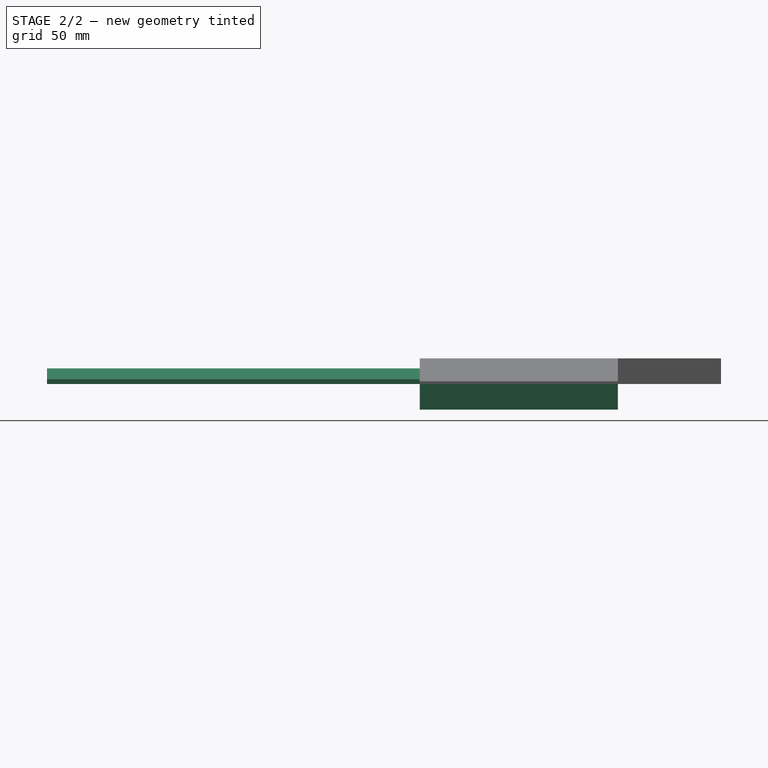
[diagram: stage 2 of 2 — right view after this stage's code; geometry added in this stage tinted green]
FEATURE [TechDraw::DrawSVGTemplate] Template
  EditableTexts = Designed_by_Name=Designed by Name; Drawing_number=Drawing number; FC-Date=Date; FC-SC=Scale; FC-SH=Sheet; FC-Title=Title; Subtitle=Subtitle; Weight=Weight
  Height = 210
  Orientation = 1
  Width = 297
FEATURE [Sketcher::SketchObject] Sketch  label="master_top_xy"
  FullyConstrained = true
  MapMode = 5
  Support = -> [XY_Plane001]
  expr: Constraints[60] = <<Dimensions>>.predrill_3_rad
  expr: Constraints[37] = <<Dimensions>>.predrill_3_rad
  expr: Constraints[35] = <<Dimensions>>.fastener_dist
  expr: Constraints[50] = <<Dimensions>>.ampcarrier_wid - 2 * <<Dimensions>>.ampcarrier_pre_dist
  expr: Constraints[36] = <<Dimensions>>.fastener_dist
  expr: Constraints[34] = <<Dimensions>>.fastener_dist
  expr: Constraints[49] = <<Dimensions>>.ampcarrier_len - 2 * <<Dimensions>>.ampcarrier_pre_dist
  expr: Constraints[33] = <<Dimensions>>.fastener_dist
  expr: Constraints[55] = <<Dimensions>>.emboss_vdist - <<Dimensions>>.ampcarrier_pre_dist
  expr: Constraints[5] = <<Dimensions>>.shell_thick
  expr: Constraints[11] = <<Dimensions>>.ctrlcutout_rad
  expr: Constraints[64] = <<Dimensions>>.duvel_dist
  expr: Constraints[65] = <<Dimensions>>.duvel_6_rad
  expr: Constraints[1] = Spreadsheet.shell_outer_rad
  expr: Constraints[12] = <<Dimensions>>.ctrlcutout_vdist
  sketch-geometry (24):
    g0: Circle CenterX=0 CenterY=0 CenterZ=0 NormalX=0 NormalY=0 NormalZ=1 AngleXU=0 Radius=151.5
    g1: Circle CenterX=0 CenterY=0 CenterZ=0 NormalX=0 NormalY=0 NormalZ=1 AngleXU=0 Radius=145.3
    g2: LineSegment StartX=-151.5 StartY=0 StartZ=0 EndX=-145.3 EndY=0 EndZ=0
    g3: Circle CenterX=0 CenterY=-75.75 CenterZ=0 NormalX=0 NormalY=0 NormalZ=1 AngleXU=0 Radius=38
    g4: LineSegment StartX=0 StartY=0 StartZ=0 EndX=0 EndY=-75.75 EndZ=0
    g5: LineSegment StartX=0 StartY=0 StartZ=0 EndX=-138.189 EndY=44.9002 EndZ=0
    g6: LineSegment StartX=0 StartY=0 StartZ=0 EndX=0 EndY=145.3 EndZ=0
    g7: LineSegment StartX=0 StartY=0 StartZ=0 EndX=138.189 EndY=44.9002 EndZ=0
    g8: LineSegment StartX=0 StartY=0 StartZ=0 EndX=85.4052 EndY=-117.55 EndZ=0
    g9: LineSegment StartX=0 StartY=0 StartZ=0 EndX=-85.4052 EndY=-117.55 EndZ=0
    g10: Circle CenterX=0 CenterY=139.3 CenterZ=0 NormalX=0 NormalY=0 NormalZ=1 AngleXU=0 Radius=3
    g11: Circle CenterX=116.219 CenterY=37.7619 CenterZ=0 NormalX=0 NormalY=0 NormalZ=1 AngleXU=0 Radius=1
    g12: Circle CenterX=71.8274 CenterY=-98.8619 CenterZ=0 NormalX=0 NormalY=0 NormalZ=1 AngleXU=0 Radius=1
    g13: Circle CenterX=-71.8274 CenterY=-98.8619 CenterZ=0 NormalX=0 NormalY=0 NormalZ=1 AngleXU=0 Radius=1
    g14: Circle CenterX=-116.219 CenterY=37.7619 CenterZ=0 NormalX=0 NormalY=0 NormalZ=1 AngleXU=0 Radius=1
    g15: LineSegment StartX=38 StartY=14.25 StartZ=0 EndX=-38 EndY=14.25 EndZ=0
    g16: LineSegment StartX=-38 StartY=14.25 StartZ=0 EndX=-38 EndY=-113.75 EndZ=0
    g17: LineSegment StartX=-38 StartY=-113.75 StartZ=0 EndX=38 EndY=-113.75 EndZ=0
    g18: LineSegment StartX=38 StartY=-113.75 StartZ=0 EndX=38 EndY=14.25 EndZ=0
    g19: LineSegment StartX=0 StartY=14.25 StartZ=0 EndX=0 EndY=-113.75 EndZ=0
    g20: Circle CenterX=38 CenterY=-113.75 CenterZ=0 NormalX=0 NormalY=0 NormalZ=1 AngleXU=0 Radius=1
    g21: Circle CenterX=-38 CenterY=-113.75 CenterZ=0 NormalX=0 NormalY=0 NormalZ=1 AngleXU=0 Radius=1
    g22: Circle CenterX=-38 CenterY=14.25 CenterZ=0 NormalX=0 NormalY=0 NormalZ=1 AngleXU=0 Radius=1
    g23: Circle CenterX=38 CenterY=14.25 CenterZ=0 NormalX=0 NormalY=0 NormalZ=1 AngleXU=0 Radius=1
  constraints (66):
    c: Coincident(g0,g-1)
    c: Radius(g0) = 151.5
    c: Coincident(g1,g0)
    c: PointOnObject(g2,g0)
    c: PointOnObject(g2,g1)
    c: Distance(g2,g2) = 6.2
    c: PointOnObject(g2,g-1)
    c: Perpendicular(g0,g2)
    c: Coincident(g4,g0)
    c: Vertical(g4)
    c: Coincident(g3,g4)
    c: Radius(g3) = 38
    c: DistanceY(g3,g0) = 75.75
    c: Coincident(g5,g0)
    c: PointOnObject(g5,g1)
    c: Coincident(g6,g0)
    c: PointOnObject(g6,g1)
    c: Coincident(g7,g0)
    c: PointOnObject(g7,g1)
    c: Coincident(g8,g0)
    c: PointOnObject(g8,g1)
    c: Angle(g6,g5) = 1.25664
    c: Angle(g7,g6) = 1.25664
    c: Angle(g8,g7) = 1.25664
    c: PointOnObject(g6,g-2)
    c: Coincident(g9,g0)
    c: PointOnObject(g9,g1)
    c: Angle(g9,g8) = 1.25664
    c: PointOnObject(g10,g6)
    c: PointOnObject(g11,g7)
    c: PointOnObject(g12,g8)
    c: PointOnObject(g13,g9)
    c: PointOnObject(g14,g5)
    c: Distance(g14,g5) = 23.1
    c: Distance(g11,g7) = 23.1
    c: Distance(g12,g8) = 23.1
    c: Distance(g13,g9) = 23.1
    c: Radius(g14) = 1
    c: Equal(g14,g11)
    c: Equal(g14,g12)
    c: Equal(g14,g13)
    c: Coincident(g15,g16)
    c: Coincident(g16,g17)
    c: Coincident(g17,g18)
    c: Coincident(g18,g15)
    c: Horizontal(g15)
    c: Horizontal(g17)
    c: Vertical(g16)
    c: Vertical(g18)
    c: DistanceY(g16,g15) = 128
    c: DistanceX(g15,g15) = 76
    c: PointOnObject(g19,g17)
    c: Vertical(g19)
    c: Symmetric(g15,g15,g19)
    c: PointOnObject(g3,g19)
    c: DistanceY(g19,g3) = 38
    c: Coincident(g20,g17)
    c: Coincident(g21,g16)
    c: Coincident(g22,g15)
    c: Coincident(g23,g15)
    c: Radius(g23) = 1
    c: Equal(g23,g22)
    c: Equal(g23,g21)
    c: Equal(g23,g20)
    c: Distance(g10,g6) = 6
    c: Radius(g10) = 3
FEATURE [Sketcher::SketchObject] Sketch009  label="master_bottom_xy"
  FullyConstrained = true
  MapMode = 5
  Support = -> [XY_Plane002]
  expr: Constraints[71] = <<Dimensions>>.sub_cage_rad
  expr: Constraints[34] = <<Dimensions>>.duvel_dist
  expr: Constraints[36] = <<Dimensions>>.strut_wid - <<Dimensions>>.base_thick / 2
  expr: Constraints[50] = <<Dimensions>>.strut_wid - <<Dimensions>>.base_thick / 2
  expr: Constraints[22] = .Constraints.fastener_angle
  expr: Constraints[9] = Spreadsheet.sub_cutout_rad
  expr: Constraints[27] = <<Dimensions>>.duvel_dist
  expr: Constraints[53] = <<Dimensions>>.duvel_dist
  expr: Constraints[64] = Spreadsheet.sub_fastener_rad
  expr: Constraints[23] = .Constraints.fastener_angle
  expr: .Constraints.outer_rad = Spreadsheet.shell_outer_rad
  expr: Constraints[59] = <<Dimensions>>.predrill_3_rad
  expr: Constraints[24] = .Constraints.fastener_angle
  expr: Constraints[52] = <<Dimensions>>.strut_wid - <<Dimensions>>.base_thick / 2
  expr: Constraints[65] = Spreadsheet.sub_fastener_rad
  expr: Constraints[30] = <<Dimensions>>.predrill_3_rad
  expr: .Constraints.shell_thick = <<Dimensions>>.shell_thick
  expr: Constraints[51] = <<Dimensions>>.strut_wid - <<Dimensions>>.base_thick / 2
  expr: Constraints[66] = Spreadsheet.sub_fastener_rad
  expr: Constraints[46] = <<Dimensions>>.duvel_dist
  expr: Constraints[45] = <<Dimensions>>.duvel_dist
  expr: Constraints[63] = Spreadsheet.sub_fastener_rad
  expr: Constraints[26] = <<Dimensions>>.duvel_6_rad
  expr: Constraints[29] = <<Dimensions>>.strut_wid - <<Dimensions>>.base_thick / 2
  sketch-geometry (25):
    g0: Circle CenterX=0 CenterY=0 CenterZ=0 NormalX=0 NormalY=0 NormalZ=1 AngleXU=0 Radius=151.5
    g1: Circle CenterX=0 CenterY=0 CenterZ=0 NormalX=0 NormalY=0 NormalZ=1 AngleXU=0 Radius=145.3
    g2: LineSegment StartX=-151.5 StartY=0 StartZ=0 EndX=-145.3 EndY=0 EndZ=0
    g3: Circle CenterX=0 CenterY=0 CenterZ=0 NormalX=0 NormalY=0 NormalZ=1 AngleXU=0 Radius=73
    g4: LineSegment StartX=0 StartY=0 StartZ=0 EndX=0 EndY=145.3 EndZ=0
    g5: LineSegment StartX=0 StartY=0 StartZ=0 EndX=138.189 EndY=44.9002 EndZ=0
    g6: LineSegment StartX=0 StartY=0 StartZ=0 EndX=85.4052 EndY=-117.55 EndZ=0
    g7: LineSegment StartX=0 StartY=0 StartZ=0 EndX=-85.4052 EndY=-117.55 EndZ=0
    g8: LineSegment StartX=0 StartY=0 StartZ=0 EndX=-138.189 EndY=44.9002 EndZ=0
    g9: Circle CenterX=0 CenterY=139.3 CenterZ=0 NormalX=0 NormalY=0 NormalZ=1 AngleXU=0 Radius=3
    g10: Circle CenterX=0 CenterY=122.2 CenterZ=0 NormalX=0 NormalY=0 NormalZ=1 AngleXU=0 Radius=1
    g11: Circle CenterX=132.482 CenterY=43.0461 CenterZ=0 NormalX=0 NormalY=0 NormalZ=1 AngleXU=0 Radius=3
    g12: Circle CenterX=116.219 CenterY=37.7619 CenterZ=0 NormalX=0 NormalY=0 NormalZ=1 AngleXU=0 Radius=1
    g13: Circle CenterX=-132.482 CenterY=43.0461 CenterZ=0 NormalX=0 NormalY=0 NormalZ=1 AngleXU=0 Radius=3
    g14: Circle CenterX=-116.219 CenterY=37.7619 CenterZ=0 NormalX=0 NormalY=0 NormalZ=1 AngleXU=0 Radius=1
    g15: Circle CenterX=-81.8785 CenterY=-112.696 CenterZ=0 NormalX=0 NormalY=0 NormalZ=1 AngleXU=0 Radius=3
    g16: Circle CenterX=-71.8274 CenterY=-98.8619 CenterZ=0 NormalX=0 NormalY=0 NormalZ=1 AngleXU=0 Radius=1
    g17: Circle CenterX=81.8785 CenterY=-112.696 CenterZ=0 NormalX=0 NormalY=0 NormalZ=1 AngleXU=0 Radius=3
    g18: Circle CenterX=71.8274 CenterY=-98.8619 CenterZ=0 NormalX=0 NormalY=0 NormalZ=1 AngleXU=0 Radius=1
    g19: LineSegment StartX=0 StartY=0 StartZ=0 EndX=0 EndY=-145.3 EndZ=0
    g20: Circle CenterX=0 CenterY=79.5 CenterZ=0 NormalX=0 NormalY=0 NormalZ=1 AngleXU=0 Radius=1
    g21: Circle CenterX=79.5 CenterY=0 CenterZ=0 NormalX=0 NormalY=0 NormalZ=1 AngleXU=0 Radius=1
    g22: Circle CenterX=0 CenterY=-79.5 CenterZ=0 NormalX=0 NormalY=0 NormalZ=1 AngleXU=0 Radius=1
    g23: Circle CenterX=-79.5 CenterY=0 CenterZ=0 NormalX=0 NormalY=0 NormalZ=1 AngleXU=0 Radius=1
    g24: Circle CenterX=0 CenterY=0 CenterZ=0 NormalX=0 NormalY=0 NormalZ=1 AngleXU=0 Radius=85.5
  constraints (72):
    c: Coincident(g0,g-1)
    c: Radius(g0) = 151.5  'outer_rad'
    c: Coincident(g1,g0)
    c: PointOnObject(g2,g0)
    c: PointOnObject(g2,g1)
    c: Distance(g2,g2) = 6.2  'shell_thick'
    c: PointOnObject(g2,g-1)
    c: Perpendicular(g0,g2)
    c: Coincident(g3,g0)
    c: Radius(g3) = 73
    c: Coincident(g4,g0)
    c: PointOnObject(g4,g1)
    c: Vertical(g4)
    c: Coincident(g5,g0)
    c: PointOnObject(g5,g1)
    c: Coincident(g6,g0)
    c: PointOnObject(g6,g1)
    c: Coincident(g7,g0)
    c: PointOnObject(g7,g1)
    c: Coincident(g8,g0)
    c: PointOnObject(g8,g1)
    c: Angle(g5,g4) = 1.25664  'fastener_angle'
    c: Angle(g6,g5) = 1.25664
    c: Angle(g7,g6) = 1.25664
    c: Angle(g8,g7) = 1.25664
    c: PointOnObject(g9,g4)
    c: Radius(g9) = 3
    c: Distance(g9,g4) = 6
    c: PointOnObject(g10,g4)
    c: Distance(g4,g10) = 23.1
    c: Radius(g10) = 1
    c: Equal(g10,g12) = 1.5  'fastener_dia'
    c: Equal(g10,g14) = 1.5  'fastener_dia'
    c: PointOnObject(g17,g6)
    c: Distance(g17,g6) = 6
    c: PointOnObject(g18,g6)
    c: Distance(g18,g6) = 23.1
    c: Equal(g10,g18)
    c: Equal(g9,g13)
    c: Equal(g13,g11)
    c: Equal(g11,g15)
    c: Equal(g15,g17)
    c: PointOnObject(g13,g8)
    c: PointOnObject(g15,g7)
    c: PointOnObject(g11,g5)
    c: Distance(g11,g5) = 6
    c: Distance(g13,g8) = 6
    c: PointOnObject(g14,g8)
    c: PointOnObject(g16,g7)
    c: PointOnObject(g12,g5)
    c: Distance(g14,g8) = 23.1
    c: Distance(g12,g5) = 23.1
    c: Distance(g7,g16) = 23.1
    c: Distance(g15,g7) = 6
    c: Equal(g10,g16)
    c: Coincident(g19,g0)
    c: PointOnObject(g19,g1)
    c: Vertical(g19)
    c: PointOnObject(g20,g4)
    c: Radius(g20) = 1
    c: Equal(g20,g21)
    c: Equal(g20,g22)
    c: Equal(g20,g23)
    c: Distance(g23,g0) = 79.5
    c: Distance(g20,g0) = 79.5
    c: Distance(g21,g0) = 79.5
    c: Distance(g22,g0) = 79.5
    c: PointOnObject(g22,g19)
    c: PointOnObject(g23,g-1)
    c: PointOnObject(g21,g-1)
    c: Coincident(g24,g0)
    c: Radius(g24) = 85.5
FEATURE [PartDesign::Body] Body001  label="bottom"
  Group = -> [Sketch009]
  Origin = -> Origin002
  Placement = pos=(0,-332.88,0) rot=(0,0,1;0rad)
FEATURE [Spreadsheet::Sheet] Spreadsheet  label="Dimensions"
  cells = A1=Part; B1=Description; C1=Attribute; D1=DimensionName; E1=DimensionValue; A2=any; B2=fastener_3mm_predrill; C2=rad; D2=predrill_3_rad; E2(predrill_3_rad)=1; A3=any; B3=fastener_3mm_drill; C3=rad; D3=drill_3_rad; E3(drill_3_rad)=1.5; A4=any; B4=wood_duvel_drill; C4=rad; D4=duvel_6_rad; E4(duvel_6_rad)=3; A5=bottom; B5=strut_fastener; C5=dist; D5=fastener_dist; E5(fastener_dist)==strut_wid - base_thick / 2; F5=30; A6=bottom; B6=strut_duvel; C6=dist; D6=duvel_dist; E6(duvel_dist)=6; A7=bottom; B7=sub_cage; C7=rad; D7=sub_cage_rad; E7(sub_cage_rad)=85.5; H7=W200S; I7=115.5; J7=hans_pm; K7=72; L7=W170; M7=85.5; A8=bottom; B8=sub_cutout; C8=rad; D8=sub_cutout_rad; E8(sub_cutout_rad)=73; F8=daytonaudio_pm; G8=75; H8=WS200; I8=102; J8=hans_pm; K8=58; L8=W170; M8=73; A9=bottom; B9=sub_fastener_circle; C9=rad; D9=sub_fastener_rad; E9(sub_fastener_rad)==159 / 2; F9=daytonaudio_pm; G9=83; H9=WS200; I9=109; J9=hans_pm; K9=66; L9=W170; M9==159 / 2; A10=bottom; B10=batcontact; C10=dia; D10=batcontact_dia; E10(batcontact_dia)=5.5; A11=bottom; B11=batholder; C11=length; D11=batholder_len; E11(batholder_len)=70; A12=shell; B12=outer; C12=rad; D12=shell_outer_rad; E12(shell_outer_rad)=151.5; A13=shell; B13=shell; C13=thickness; D13=shell_thick; E13(shell_thick)=6.2; A14=bottom; B14=batholder_fastener; C14=hdist; D14=batholder_fast_hdist; E14(batholder_fast_hdist)=33.5; A15=bottom; B15=batholder_hole; C15=vdist; D15=batholder_fast_vdist; E15(batholder_fast_vdist)=15; A16=bottom; B16=batcontact; C16=vdist; D16=batcontact_vdist; E16(batcontact_vdist)=45; A17=bottom; B17=batcontact; C17=hdist; D17=batcontact_hdist; E17(batcontact_hdist)=18; A18=top; B18=ctrlcutout; C18=vdist; D18=ctrlcutout_vdist; E18(ctrlcutout_vdist)==shell_outer_rad / 2; A19=top; B19=ctrlcutout; C19=rad; D19=ctrlcutout_rad; E19(ctrlcutout_rad)=38; A20=any; B20=base; C20=thickness; D20=base_thick; E20(base_thick)=11.8; A21=top/bottom; B21=bevel; C21=thickness; D21=bevel_thick; E21(bevel_thick)=8; A22=top; B22=drill; C22=depth; D22=drill_depth; E22(drill_depth)=8; A23=bottom; B23=prcutout; C23=depth; D23=prcutout_depth; E23(prcutout_depth)=8; A24=ampcarrier; B24=ampcarrier; C24=length; D24=ampcarrier_len; E24(ampcarrier_len)=148; A25=ampcarrier; B25=ampcarrier; C25=width; D25=ampcarrier_wid; E25(ampcarrier_wid)=96; A26=ampcarrier; B26=emboss; C26=rad; D26=emboss_rad; E26(emboss_rad)==ctrlcutout_rad - 0.05; A27=ampcarrier; B27=emboss; C27=vdist; D27=emboss_vdist; E27(emboss_vdist)=48; A28=ampcarrier; B28=predrill; C28=dist; D28=ampcarrier_pre_dist; E28(ampcarrier_pre_dist)=10; A29=ampcarrier; B29=volume_bevel; C29=rad; D29=volume_bevel_rad; E29(volume_bevel_rad)=16; A30=ampcarrier; B30=volume_hole; C30=rad; D30=volume_hole_rad; E30(volume_hole_rad)=4; A31=ampcarrier; B31=input_bevel; C31=rad; D31=input_bevel_rad; E31(input_bevel_rad)=8.5; A32=ampcarrier; B32=input_hole; C32=rad; D32=input_hole_rad; E32(input_hole_rad)=6; A33=ampcarrier; B33=vout_bevel; C33=rad; D33=vout_bevel_rad; E33(vout_bevel_rad)=6.5; A34=ampcarrier; B34=vout_hole; C34=rad; D34=vout_hole_rad; E34(vout_hole_rad)=4; A35=ampcarrier; B35=auxin_bevel; C35=rad; D35=auxin_bevel_rad; E35(auxin_bevel_rad)=5.5; A36=ampcarrier; B36=auxin_hole; +185 more cells
FEATURE [TechDraw::DrawViewPart] View
  CoarseView = false
  Direction = (0,0,1)
  Focus = 100
  HardHidden = false
  IsoCount = 0
  IsoHidden = false
  IsoVisible = false
  LockPosition = false
  Perspective = false
  Rotation = 0
  ScaleType = 0
  SeamHidden = false
  SeamVisible = true
  SmoothHidden = false
  SmoothVisible = true
  Source = -> [Sketch009]
  X = 148.5
  XDirection = (1,0,0)
  Y = 105
FEATURE [TechDraw::DrawPage] Page
  KeepUpdated = true
  NextBalloonIndex = 1
  ProjectionType = 0
  Template = -> Template
  Views = -> [View]
FEATURE [Sketcher::SketchObject] Sketch036  label="master_ampcarrier_xy"
  FullyConstrained = true
  MapMode = 5
  expr: Constraints[114] = <<Dimensions>>.drill_3_rad
  expr: Constraints[112] = <<Dimensions>>.ampcarrier_wid
  expr: .Constraints.emboss_dist = <<Dimensions>>.emboss_vdist
  expr: .Constraints.width = <<Dimensions>>.ampcarrier_len
  expr: Constraints[101] = <<Dimensions>>.fillet_rad
  expr: Constraints[23] = <<Dimensions>>.ampcarrier_pre_dist
  expr: Constraints[44] = <<Dimensions>>.vout_hole_rad
  expr: Constraints[111] = <<Dimensions>>.ampcarrier_pre_dist
  expr: Constraints[47] = <<Dimensions>>.mode_hole_rad
  expr: Constraints[24] = <<Dimensions>>.ampcarrier_pre_dist
  expr: Constraints[43] = <<Dimensions>>.vout_bevel_rad
  expr: Constraints[34] = <<Dimensions>>.volume_bevel_rad
  expr: Constraints[96] = <<Dimensions>>.volume_bevel_rad - 2 * <<Dimensions>>.led_rad
  expr: Constraints[42] = <<Dimensions>>.input_hole_rad
  expr: Constraints[95] = <<Dimensions>>.led_rad
  expr: Constraints[29] = <<Dimensions>>.drill_3_rad
  expr: Constraints[46] = <<Dimensions>>.mode_bevel_rad
  expr: Constraints[39] = <<Dimensions>>.auxin_bevel_rad
  expr: Constraints[110] = <<Dimensions>>.ampcarrier_pre_dist
  expr: Constraints[5] = <<Dimensions>>.emboss_rad
  expr: Constraints[84] = <<Dimensions>>.controls_dist
  expr: Constraints[41] = <<Dimensions>>.input_bevel_rad
  expr: Constraints[40] = <<Dimensions>>.auxin_hole_rad
  expr: .Constraints.SwitchingPot = <<Dimensions>>.mode_hole_rad
  expr: .Constraints.InstrumentPot = <<Dimensions>>.volume_hole_rad
  expr: Constraints[68] = <<Dimensions>>.controls_dist
  sketch-geometry (41):
    g0: LineSegment StartX=-45 StartY=148 StartZ=0 EndX=45 EndY=148 EndZ=0
    g1: LineSegment StartX=48 StartY=145 StartZ=0 EndX=48 EndY=3 EndZ=0
    g2: LineSegment StartX=45 StartY=0 StartZ=0 EndX=-45 EndY=0 EndZ=0
    g3: LineSegment StartX=-48 StartY=3 StartZ=0 EndX=-48 EndY=145 EndZ=0
    g4: Circle CenterX=0 CenterY=100 CenterZ=0 NormalX=0 NormalY=0 NormalZ=1 AngleXU=0 Radius=37.95
    g5: LineSegment StartX=0 StartY=148 StartZ=0 EndX=0 EndY=0 EndZ=0
    g6: LineSegment StartX=-38 StartY=148 StartZ=0 EndX=-38 EndY=0 EndZ=0
    g7: LineSegment StartX=38 StartY=148 StartZ=0 EndX=38 EndY=0 EndZ=0
    g8: LineSegment StartX=-38 StartY=138 StartZ=0 EndX=38 EndY=138 EndZ=0
    g9: LineSegment StartX=-38 StartY=10 StartZ=0 EndX=38 EndY=10 EndZ=0
    g10: Circle CenterX=-38 CenterY=138 CenterZ=0 NormalX=0 NormalY=0 NormalZ=1 AngleXU=0 Radius=1.5
    g11: Circle CenterX=38 CenterY=138 CenterZ=0 NormalX=0 NormalY=0 NormalZ=1 AngleXU=0 Radius=1.5
    g12: Circle CenterX=-38 CenterY=10 CenterZ=0 NormalX=0 NormalY=0 NormalZ=1 AngleXU=0 Radius=1.5
    g13: Circle CenterX=38 CenterY=10 CenterZ=0 NormalX=0 NormalY=0 NormalZ=1 AngleXU=0 Radius=1.5
    g14: Circle CenterX=14.2446 CenterY=110.922 CenterZ=0 NormalX=0 NormalY=0 NormalZ=1 AngleXU=0 Radius=16
    g15: Circle CenterX=14.2446 CenterY=110.922 CenterZ=0 NormalX=0 NormalY=0 NormalZ=1 AngleXU=0 Radius=4
    g16: Circle CenterX=-16.1884 CenterY=123.395 CenterZ=0 NormalX=0 NormalY=0 NormalZ=1 AngleXU=0 Radius=5.5
    g17: Circle CenterX=-16.1884 CenterY=123.395 CenterZ=0 NormalX=0 NormalY=0 NormalZ=1 AngleXU=0 Radius=3
    g18: Circle CenterX=-23.9501 CenterY=91.3921 CenterZ=0 NormalX=0 NormalY=0 NormalZ=1 AngleXU=0 Radius=8.5
    g19: Circle CenterX=-23.9501 CenterY=91.3921 CenterZ=0 NormalX=0 NormalY=0 NormalZ=1 AngleXU=0 Radius=6
    g20: Circle CenterX=-25.4304 CenterY=110.334 CenterZ=0 NormalX=0 NormalY=0 NormalZ=1 AngleXU=0 Radius=6.5
    g21: Circle CenterX=-25.4304 CenterY=110.334 CenterZ=0 NormalX=0 NormalY=0 NormalZ=1 AngleXU=0 Radius=4
    g22: Circle CenterX=0 CenterY=80.05 CenterZ=0 NormalX=0 NormalY=0 NormalZ=1 AngleXU=0 Radius=14
    g23: Circle CenterX=0 CenterY=80.05 CenterZ=0 NormalX=0 NormalY=0 NormalZ=1 AngleXU=0 Radius=5
    g24: LineSegment StartX=-21.5941 StartY=131.207 StartZ=0 EndX=-19.318 EndY=127.918 EndZ=0
    g25: LineSegment StartX=-31.4521 StartY=112.781 StartZ=0 EndX=-35.1578 EndY=114.287 EndZ=0
    g26: LineSegment StartX=26.9417 StartY=120.658 StartZ=0 EndX=30.116 EndY=123.092 EndZ=0
    g27: LineSegment StartX=-31.9491 StartY=88.5172 StartZ=0 EndX=-35.7134 EndY=87.1643 EndZ=0
    g28: LineSegment StartX=0 StartY=66.05 StartZ=0 EndX=0 EndY=62.05 EndZ=0
    g29: LineSegment StartX=-19.3653 StartY=118.906 StartZ=0 EndX=-21.6758 EndY=115.64 EndZ=0
    g30: LineSegment StartX=-24.924 StartY=103.854 StartZ=0 EndX=-24.6123 EndY=99.8663 EndZ=0
    g31: LineSegment StartX=-16.268 StartY=87.7541 StartZ=0 EndX=-12.6529 EndY=86.0421 EndZ=0
    g32: LineSegment StartX=5.86542 StartY=92.7621 StartZ=0 EndX=7.54126 EndY=96.3941 EndZ=0
    g33: Circle CenterX=14.2446 CenterY=110.922 CenterZ=0 NormalX=0 NormalY=0 NormalZ=1 AngleXU=0 Radius=5
    g34: LineSegment StartX=3.04459 StartY=110.922 StartZ=0 EndX=14.2446 EndY=110.922 EndZ=0
    g35: Circle CenterX=3.04459 CenterY=110.922 CenterZ=0 NormalX=0 NormalY=0 NormalZ=1 AngleXU=0 Radius=2.4
    g36: ArcOfCircle CenterX=-45 CenterY=145 CenterZ=0 NormalX=0 NormalY=0 NormalZ=1 AngleXU=0 Radius=3 StartAngle=1.5708 EndAngle=3.14159
    g37: ArcOfCircle CenterX=-45 CenterY=3 CenterZ=0 NormalX=0 NormalY=0 NormalZ=1 AngleXU=0 Radius=3 StartAngle=3.14159 EndAngle=4.71239
    g38: ArcOfCircle CenterX=45 CenterY=3 CenterZ=0 NormalX=0 NormalY=0 NormalZ=1 AngleXU=0 Radius=3 StartAngle=4.71239 EndAngle=6.28319
    g39: ArcOfCircle CenterX=45 CenterY=145 CenterZ=0 NormalX=0 NormalY=0 NormalZ=1 AngleXU=0 Radius=3 StartAngle=4.7e-15 EndAngle=1.5708
    g40: Circle CenterX=0 CenterY=70.55 CenterZ=0 NormalX=0 NormalY=0 NormalZ=1 AngleXU=0 Radius=1.5
  constraints (116):
    c: Horizontal(g0)
    c: Horizontal(g2)
    c: Vertical(g1)
    c: Vertical(g3)
    c: DistanceY(g2,g0) = 148  'width'
    c: Radius(g4) = 37.95
    c: PointOnObject(g5,g2)
    c: Vertical(g5)
    c: Symmetric(g0,g0,g5)
    c: PointOnObject(g4,g5)
    c: DistanceY(g4,g0) = 48  'emboss_dist'
    c: PointOnObject(g6,g0)
    c: Vertical(g6)
    c: PointOnObject(g7,g0)
    c: PointOnObject(g7,g2)
    c: Vertical(g7)
    c: PointOnObject(g8,g6)
    c: PointOnObject(g8,g7)
    c: Horizontal(g8)
    c: PointOnObject(g9,g6)
    c: PointOnObject(g9,g7)
    c: Horizontal(g9)
    c: PointOnObject(g6,g2)
    c: DistanceY(g8,g6) = 10
    c: DistanceY(g6,g9) = 10
    c: Coincident(g10,g8)
    c: Coincident(g11,g8)
    c: Coincident(g12,g9)
    c: Coincident(g13,g9)
    c: Radius(g10) = 1.5
    c: Equal(g10,g11)
    c: Equal(g10,g13)
    c: Equal(g10,g12)
    c: Coincident(g15,g14)
    c: Radius(g14) = 16
    c: Radius(g15) = 4  'InstrumentPot'
    c: Coincident(g17,g16)
    c: Coincident(g19,g18)
    c: Coincident(g21,g20)
    c: Radius(g16) = 5.5
    c: Radius(g17) = 3
    c: Radius(g18) = 8.5
    c: Radius(g19) = 6
    c: Radius(g20) = 6.5
    c: Radius(g21) = 4
    c: Coincident(g23,g22)
    c: Radius(g22) = 14
    c: Radius(g23) = 5
    c: PointOnObject(g24,g4)
    c: Perpendicular(g4,g24)
    c: Perpendicular(g24,g16) = 4.71239
    c: PointOnObject(g26,g14)
    c: PointOnObject(g27,g4)
    c: PointOnObject(g28,g22)
    c: PointOnObject(g28,g4)
    c: PointOnObject(g26,g4)
    c: Perpendicular(g25,g4) = 1.5708
    c: Perpendicular(g25,g20) = 1.5708
    c: Perpendicular(g4,g27)
    c: Perpendicular(g4,g28)
    c: Perpendicular(g27,g18) = 1.5708
    c: Perpendicular(g22,g28)
    c: Perpendicular(g4,g26)
    c: Perpendicular(g14,g26)
    c: Equal(g24,g25)
    c: Equal(g25,g26)
    c: Equal(g26,g27)
    c: Equal(g27,g28)
    c: Distance(g24,g24) = 4
    c: PointOnObject(g29,g16)
    c: PointOnObject(g29,g20)
    c: PointOnObject(g30,g20)
    c: PointOnObject(g30,g18)
    c: Perpendicular(g16,g29)
    c: Perpendicular(g20,g30)
    c: PointOnObject(g31,g18)
    c: PointOnObject(g31,g22)
    c: Perpendicular(g18,g31)
    c: PointOnObject(g32,g22)
    c: PointOnObject(g32,g14)
    c: Perpendicular(g22,g32)
    c: Equal(g29,g30)
    c: Equal(g30,g31)
    c: Equal(g31,g32)
    c: Distance(g29,g29) = 4
    c: Perpendicular(g18,g30)
    c: Perpendicular(g20,g29)
    c: Perpendicular(g22,g31)
    c: Perpendicular(g14,g32)
    c: PointOnObject(g22,g5)
    c: Coincident(g5,g-1)
    c: Coincident(g33,g14)
    c: Radius(g33) = 5  'SwitchingPot'
    c: Coincident(g34,g14)
    c: Horizontal(g34)
    c: Radius(g35) = 2.4
    c: DistanceX(g34,g14) = 11.2
    c: Coincident(g35,g34)
    c: Equal(g39,g36)
    c: Equal(g36,g37)
    c: Equal(g37,g38)
    c: Radius(g38) = 3
    c: Tangent(g38,g2) = 1.5708
    c: Tangent(g38,g1) = 1.5708
    c: Tangent(g37,g2) = 1.5708
    c: Tangent(g37,g3) = 1.5708
    c: Tangent(g36,g3) = 1.5708
    c: Tangent(g36,g0) = 1.5708
    c: Tangent(g39,g1) = 1.5708
    c: Tangent(g39,g0) = 1.5708
    c: DistanceX(g3,g6) = 10
    c: DistanceX(g7,g1) = 10
    c: DistanceX(g3,g1) = 96
    c: PointOnObject(g40,g5)
    c: Radius(g40) = 1.5
    c: DistanceY(g40,g22) = 9.5
FEATURE [Sketcher::SketchObject] Sketch053  label="master_sc_xy"
  FullyConstrained = true
  MapMode = 5
  Support = -> [XY_Plane004]
  expr: Constraints[79] = <<Dimensions>>.sc_pz_grl_wid
  expr: Constraints[59] = <<Dimensions>>.predrill_3_rad
  expr: Constraints[42] = <<Dimensions>>.sc_mounting_rad
  expr: Constraints[20] = <<Dimensions>>.sc_cutout_rad
  expr: Constraints[10] = <<Dimensions>>.sc_wid
  expr: Constraints[37] = <<Dimensions>>.drill_3_rad
  expr: Constraints[9] = <<Dimensions>>.sc_len
  expr: Constraints[65] = <<Dimensions>>.ampcarrier_pre_dist
  expr: Constraints[81] = <<Dimensions>>.predrill_3_rad + <<Dimensions>>.sc_pz_grl_wid
  expr: Constraints[66] = <<Dimensions>>.ampcarrier_pre_dist
  sketch-geometry (43):
    g0: LineSegment StartX=48 StartY=0 StartZ=0 EndX=-48 EndY=0 EndZ=0
    g1: LineSegment StartX=-48 StartY=0 StartZ=0 EndX=-48 EndY=140.4 EndZ=0
    g2: LineSegment StartX=-48 StartY=140.4 StartZ=0 EndX=48 EndY=140.4 EndZ=0
    g3: LineSegment StartX=48 StartY=140.4 StartZ=0 EndX=48 EndY=0 EndZ=0
    g4: LineSegment StartX=-2.6e-15 StartY=140.4 StartZ=0 EndX=-2.6e-15 EndY=0 EndZ=0
    g5: LineSegment StartX=-48 StartY=70.2 StartZ=0 EndX=48 EndY=70.2 EndZ=0
    g6: GeomPoint X=-2.6e-15 Y=70.2 Z=0
    g7: Circle CenterX=-2.6e-15 CenterY=70.2 CenterZ=0 NormalX=0 NormalY=0 NormalZ=1 AngleXU=0 Radius=35.5
    g8: LineSegment StartX=-30.4056 StartY=140.4 StartZ=0 EndX=-30.4056 EndY=0 EndZ=0
    g9: LineSegment StartX=30.4056 StartY=140.4 StartZ=0 EndX=30.4056 EndY=0 EndZ=0
    g10: LineSegment StartX=30.4056 StartY=130.4 StartZ=0 EndX=-30.4056 EndY=130.4 EndZ=0
    g11: LineSegment StartX=-30.4056 StartY=10 StartZ=0 EndX=30.4056 EndY=10 EndZ=0
    g12: Circle CenterX=-30.4056 CenterY=130.4 CenterZ=0 NormalX=0 NormalY=0 NormalZ=1 AngleXU=0 Radius=1.5
    g13: Circle CenterX=30.4056 CenterY=130.4 CenterZ=0 NormalX=0 NormalY=0 NormalZ=1 AngleXU=0 Radius=1.5
    g14: Circle CenterX=-30.4056 CenterY=10 CenterZ=0 NormalX=0 NormalY=0 NormalZ=1 AngleXU=0 Radius=1.5
    g15: Circle CenterX=30.4056 CenterY=10 CenterZ=0 NormalX=0 NormalY=0 NormalZ=1 AngleXU=0 Radius=1.5
    g16: Circle CenterX=-2.6e-15 CenterY=70.2 CenterZ=0 NormalX=0 NormalY=0 NormalZ=1 AngleXU=0 Radius=43
    g17: LineSegment StartX=-30.4056 StartY=100.606 StartZ=0 EndX=30.4056 EndY=100.606 EndZ=0
    g18: LineSegment StartX=30.4056 StartY=100.606 StartZ=0 EndX=30.4056 EndY=39.7944 EndZ=0
    g19: LineSegment StartX=30.4056 StartY=39.7944 StartZ=0 EndX=-30.4056 EndY=39.7944 EndZ=0
    g20: LineSegment StartX=-30.4056 StartY=39.7944 StartZ=0 EndX=-30.4056 EndY=100.606 EndZ=0
    g21: Circle CenterX=-30.4056 CenterY=100.606 CenterZ=0 NormalX=0 NormalY=0 NormalZ=1 AngleXU=0 Radius=1
    g22: Circle CenterX=30.4056 CenterY=100.606 CenterZ=0 NormalX=0 NormalY=0 NormalZ=1 AngleXU=0 Radius=1
    g23: Circle CenterX=30.4056 CenterY=39.7944 CenterZ=0 NormalX=0 NormalY=0 NormalZ=1 AngleXU=0 Radius=1
    g24: Circle CenterX=-30.4056 CenterY=39.7944 CenterZ=0 NormalX=0 NormalY=0 NormalZ=1 AngleXU=0 Radius=1
    g25: LineSegment StartX=-30.4056 StartY=39.7944 StartZ=0 EndX=30.4056 EndY=100.606 EndZ=0
    g26: LineSegment StartX=-30.4056 StartY=100.606 StartZ=0 EndX=30.4056 EndY=39.7944 EndZ=0
    g27: LineSegment StartX=-25.7994 StartY=45.8148 StartZ=0 EndX=-28.9914 EndY=42.6228 EndZ=0
    g28: LineSegment StartX=-28.9914 StartY=42.6228 StartZ=0 EndX=-27.5772 EndY=41.2086 EndZ=0
    g29: LineSegment StartX=-27.5772 StartY=41.2086 StartZ=0 EndX=-24.3852 EndY=44.4006 EndZ=0
    g30: GeomPoint X=-28.2843 Y=41.9157 Z=0
    g31: LineSegment StartX=25.7994 StartY=45.8148 StartZ=0 EndX=28.9914 EndY=42.6228 EndZ=0
    g32: LineSegment StartX=24.3852 StartY=44.4006 StartZ=0 EndX=27.5772 EndY=41.2086 EndZ=0
    g33: LineSegment StartX=27.5772 StartY=41.2086 StartZ=0 EndX=28.9914 EndY=42.6228 EndZ=0
    g34: GeomPoint X=28.2843 Y=41.9157 Z=0
    g35: LineSegment StartX=-25.7994 StartY=94.5852 StartZ=0 EndX=-28.9914 EndY=97.7772 EndZ=0
    g36: LineSegment StartX=-24.3852 StartY=95.9994 StartZ=0 EndX=-27.5772 EndY=99.1914 EndZ=0
    g37: LineSegment StartX=-27.5772 StartY=99.1914 StartZ=0 EndX=-28.9914 EndY=97.7772 EndZ=0
    g38: GeomPoint X=-28.2843 Y=98.4843 Z=0
    g39: LineSegment StartX=24.3852 StartY=95.9994 StartZ=0 EndX=27.5772 EndY=99.1914 EndZ=0
    g40: LineSegment StartX=25.7994 StartY=94.5852 StartZ=0 EndX=28.9914 EndY=97.7772 EndZ=0
    g41: LineSegment StartX=28.9914 StartY=97.7772 StartZ=0 EndX=27.5772 EndY=99.1914 EndZ=0
    g42: GeomPoint X=28.2843 Y=98.4843 Z=0
  constraints (115):
    c: Coincident(g0,g1)
    c: Coincident(g1,g2)
    c: Coincident(g2,g3)
    c: Coincident(g3,g0)
    c: Horizontal(g0)
    c: Horizontal(g2)
    c: Vertical(g1)
    c: Vertical(g3)
    c: Symmetric(g0,g0,g-1)
    c: DistanceY(g0,g1) = 140.4
    c: DistanceX(g1,g2) = 96
    c: PointOnObject(g4,g0)
    c: Vertical(g4)
    c: Symmetric(g1,g2,g4)
    c: PointOnObject(g5,g3)
    c: Horizontal(g5)
    c: Symmetric(g1,g0,g5)
    c: PointOnObject(g6,g5)
    c: PointOnObject(g6,g4)
    c: Coincident(g7,g6)
    c: Radius(g7) = 35.5
    c: PointOnObject(g8,g2)
    c: PointOnObject(g8,g0)
    c: Vertical(g8)
    c: PointOnObject(g9,g2)
    c: PointOnObject(g9,g0)
    c: Vertical(g9)
    c: PointOnObject(g10,g9)
    c: PointOnObject(g10,g8)
    c: Horizontal(g10)
    c: PointOnObject(g11,g8)
    c: PointOnObject(g11,g9)
    c: Horizontal(g11)
    c: Coincident(g12,g10)
    c: Coincident(g13,g10)
    c: Coincident(g14,g11)
    c: Coincident(g15,g11)
    c: Radius(g12) = 1.5
    c: Equal(g12,g13)
    c: Equal(g12,g15)
    c: Equal(g12,g14)
    c: Coincident(g16,g7)
    c: Radius(g16) = 43
    c: Coincident(g17,g18)
    c: Coincident(g18,g19)
    c: Coincident(g19,g20)
    c: Coincident(g20,g17)
    c: Horizontal(g17)
    c: Horizontal(g19)
    c: Vertical(g18)
    c: Vertical(g20)
    c: PointOnObject(g17,g16)
    c: PointOnObject(g18,g16)
    c: PointOnObject(g17,g16)
    c: Equal(g17,g20)
    c: Coincident(g21,g17)
    c: Coincident(g22,g17)
    c: Coincident(g23,g18)
    c: Coincident(g24,g19)
    c: Radius(g22) = 1
    c: Equal(g22,g21)
    c: Equal(g22,g24)
    c: Equal(g22,g23)
    c: PointOnObject(g21,g8)
    c: PointOnObject(g22,g9)
    c: DistanceY(g12,g8) = 10
    c: DistanceY(g8,g14) = 10
    c: Coincident(g25,g24)
    c: Coincident(g25,g22)
    c: Coincident(g26,g21)
    c: Coincident(g26,g23)
    c: PointOnObject(g27,g7)
    c: Coincident(g28,g27)
    c: Coincident(g29,g28)
    c: PointOnObject(g29,g7)
    c: PointOnObject(g30,g25)
    c: Symmetric(g27,g28,g30)
    c: Parallel(g29,g25)
    c: Parallel(g25,g27)
    c: Distance(g28,g27) = 2
    c: Equal(g29,g27)
    c: Distance(g24,g30) = 3
    c: PointOnObject(g31,g7)
    c: PointOnObject(g32,g7)
    c: Coincident(g33,g32)
    c: Coincident(g33,g31)
    c: PointOnObject(g34,g26)
    c: Symmetric(g32,g31,g34)
    c: Parallel(g31,g32)
    c: Parallel(g32,g26)
    c: Equal(g31,g32)
    c: Equal(g32,g29)
    c: Equal(g28,g33)
    c: PointOnObject(g35,g7)
    c: PointOnObject(g36,g7)
    c: Coincident(g37,g36)
    c: Coincident(g37,g35)
    c: Parallel(g35,g36)
    c: Parallel(g36,g26)
    c: PointOnObject(g38,g26)
    c: Symmetric(g35,g36,g38)
    c: Equal(g35,g36)
    c: Equal(g36,g27)
    c: Equal(g28,g37)
    c: PointOnObject(g39,g7)
    c: PointOnObject(g40,g7)
    c: Coincident(g41,g40)
    c: Coincident(g41,g39)
    c: PointOnObject(g42,g25)
    c: Parallel(g39,g40)
    c: Parallel(g40,g25)
    c: Symmetric(g39,g40,g42)
    c: Equal(g39,g40)
    c: Equal(g40,g29)
    c: Equal(g28,g41)
FEATURE [PartDesign::Body] Body003  label="alpha4-carrier"
  Group = -> [Sketch053]
  Origin = -> Origin004
  Placement = pos=(0.0547037,-991.373,0) rot=(0,0,1;0rad)
FEATURE [Sketcher::SketchObject] Sketch058  label="master_strut_xy"
  FullyConstrained = true
  MapMode = 5
  Support = -> [XY_Plane005]
  expr: Constraints[52] = <<Dimensions>>.sc_len
  expr: Constraints[16] = <<Dimensions>>.fillet_rad
  expr: Constraints[51] = <<Dimensions>>.strut_wid
  expr: Constraints[54] = <<Dimensions>>.strut_cutout_len
  sketch-geometry (22):
    g0: LineSegment StartX=0 StartY=70.2 StartZ=0 EndX=0 EndY=-70.2 EndZ=0
    g1: LineSegment StartX=-14.5 StartY=70.2 StartZ=0 EndX=-14.5 EndY=-70.2 EndZ=0
    g2: LineSegment StartX=-14.5 StartY=-70.2 StartZ=0 EndX=14.5 EndY=-70.2 EndZ=0
    g3: LineSegment StartX=-14.5 StartY=70.2 StartZ=0 EndX=14.5 EndY=70.2 EndZ=0
    g4: ArcOfCircle CenterX=0 CenterY=55.4 CenterZ=0 NormalX=0 NormalY=0 NormalZ=1 AngleXU=0 Radius=3 StartAngle=1.5708 EndAngle=3.14159
    g5: ArcOfCircle CenterX=-3.4e-15 CenterY=-55.4 CenterZ=0 NormalX=0 NormalY=0 NormalZ=1 AngleXU=0 Radius=3 StartAngle=3.14159 EndAngle=4.71239
    g6: LineSegment StartX=-3 StartY=55.4 StartZ=0 EndX=-3 EndY=-55.4 EndZ=0
    g7: LineSegment StartX=14.5 StartY=70.2 StartZ=0 EndX=14.5 EndY=61.4 EndZ=0
    g8: LineSegment StartX=14.5 StartY=-70.2 StartZ=0 EndX=14.5 EndY=-61.4 EndZ=0
    g9: ArcOfCircle CenterX=11.5 CenterY=-61.4 CenterZ=0 NormalX=0 NormalY=0 NormalZ=1 AngleXU=0 Radius=3 StartAngle=0 EndAngle=1.5708
    g10: ArcOfCircle CenterX=11.5 CenterY=61.4 CenterZ=0 NormalX=0 NormalY=0 NormalZ=1 AngleXU=0 Radius=3 StartAngle=4.71239 EndAngle=6.28319
    g11: LineSegment StartX=11.5 StartY=61.4 StartZ=0 EndX=14.5 EndY=61.4 EndZ=0
    g12: LineSegment StartX=11.5 StartY=61.4 StartZ=0 EndX=11.5 EndY=58.4 EndZ=0
    g13: LineSegment StartX=0 StartY=55.4 StartZ=0 EndX=-3 EndY=55.4 EndZ=0
    g14: LineSegment StartX=0 StartY=55.4 StartZ=0 EndX=0 EndY=58.4 EndZ=0
    g15: LineSegment StartX=11.5 StartY=-61.4 StartZ=0 EndX=14.5 EndY=-61.4 EndZ=0
    g16: LineSegment StartX=11.5 StartY=-61.4 StartZ=0 EndX=11.5 EndY=-58.4 EndZ=0
    g17: LineSegment StartX=-3.4e-15 StartY=-55.4 StartZ=0 EndX=-3.4e-15 EndY=-58.4 EndZ=0
    g18: LineSegment StartX=-3.4e-15 StartY=-55.4 StartZ=0 EndX=-3 EndY=-55.4 EndZ=0
    g19: LineSegment StartX=11.5 StartY=-58.4 StartZ=0 EndX=-3.6e-15 EndY=-58.4 EndZ=0
    g20: LineSegment StartX=11.5 StartY=58.4 StartZ=0 EndX=0 EndY=58.4 EndZ=0
    g21: GeomPoint X=0 Y=0 Z=0
  constraints (58):
    c: Vertical(g0)
    c: Vertical(g1)
    c: Coincident(g2,g1)
    c: Horizontal(g2)
    c: Coincident(g3,g1)
    c: Horizontal(g3)
    c: Symmetric(g1,g3,g0)
    c: Coincident(g6,g4)
    c: Coincident(g6,g5)
    c: Vertical(g6)
    c: Coincident(g7,g3)
    c: Vertical(g7)
    c: Coincident(g8,g2)
    c: Vertical(g8)
    c: Coincident(g9,g8)
    c: Coincident(g10,g7)
    c: Radius(g10) = 3
    c: Equal(g10,g9)
    c: Equal(g10,g5)
    c: Equal(g10,g4)
    c: Coincident(g11,g10)
    c: Coincident(g11,g7)
    c: Horizontal(g11)
    c: Coincident(g12,g10)
    c: Coincident(g12,g10)
    c: Vertical(g12)
    c: Coincident(g13,g4)
    c: Horizontal(g13)
    c: Coincident(g14,g4)
    c: Vertical(g14)
    c: Coincident(g15,g9)
    c: Coincident(g16,g9)
    c: Vertical(g16)
    c: Coincident(g17,g5)
    c: Vertical(g17)
    c: Coincident(g18,g5)
    c: Horizontal(g18)
    c: Horizontal(g15)
    c: Coincident(g13,g4)
    c: Coincident(g14,g4)
    c: Coincident(g17,g5)
    c: Coincident(g5,g18)
    c: Coincident(g16,g9)
    c: Coincident(g15,g8)
    c: Coincident(g19,g9)
    c: Horizontal(g19)
    c: Coincident(g20,g10)
    c: Horizontal(g20)
    c: Coincident(g20,g4)
    c: Coincident(g5,g19)
    c: PointOnObject(g4,g0)
    c: DistanceX(g1,g2) = 29
    c: DistanceY(g1,g1) = 140.4
    c: Equal(g7,g8)
    c: DistanceY(g9,g10) = 116.8
    c: Symmetric(g1,g2,g0)
    c: Symmetric(g0,g0,g21)
    c: Coincident(g21,g-1)
FEATURE [PartDesign::Body] Body004  label="strut"
  Group = -> [Sketch058]
  Origin = -> Origin005
  Placement = pos=(1.05983,-92.2072,0) rot=(0,0,1;0rad)
FEATURE [Sketcher::SketchObject] Sketch062  label="master_stand_xy"
  FullyConstrained = true
  MapMode = 5
  Support = -> [XY_Plane006]
  expr: Constraints[45] = <<Dimensions>>.strut_wid
  expr: Constraints[33] = <<Dimensions>>.stand_wid
  expr: Constraints[44] = <<Dimensions>>.base_thick
  expr: Constraints[43] = <<Dimensions>>.fillet_rad
  expr: Constraints[34] = <<Dimensions>>.base_thick
  expr: Constraints[60] = <<Dimensions>>.base_thick
  expr: Constraints[35] = <<Dimensions>>.base_thick
  expr: Constraints[29] = <<Dimensions>>.fillet_rad
  expr: Constraints[28] = <<Dimensions>>.stand_hei
  sketch-geometry (21):
    g0: LineSegment StartX=-14.5 StartY=0 StartZ=0 EndX=14.5 EndY=0 EndZ=0
    g1: LineSegment StartX=-14.5 StartY=0 StartZ=0 EndX=-14.5 EndY=-8.8 EndZ=0
    g2: LineSegment StartX=-11.5 StartY=-11.8 StartZ=0 EndX=-2.7 EndY=-11.8 EndZ=0
    g3: LineSegment StartX=14.7978 StartY=-11.8 StartZ=0 EndX=21.5 EndY=-25.6968 EndZ=0
    g4: LineSegment StartX=18.7978 StartY=-30 StartZ=0 EndX=12.2271 EndY=-30 EndZ=0
    g5: LineSegment StartX=9.7 StartY=-28.6166 StartZ=0 EndX=-0.172855 EndY=-13.1834 EndZ=0
    g6: ArcOfCircle CenterX=18.7978 CenterY=-27 CenterZ=0 NormalX=0 NormalY=0 NormalZ=1 AngleXU=0 Radius=3 StartAngle=4.71239 EndAngle=6.73255
    g7: ArcOfCircle CenterX=12.2271 CenterY=-27 CenterZ=0 NormalX=0 NormalY=0 NormalZ=1 AngleXU=0 Radius=3 StartAngle=3.7107 EndAngle=4.71239
    g8: ArcOfCircle CenterX=-2.7 CenterY=-14.8 CenterZ=0 NormalX=0 NormalY=0 NormalZ=1 AngleXU=0 Radius=3 StartAngle=0.569109 EndAngle=1.5708
    g9: LineSegment StartX=-2.7 StartY=-11.8 StartZ=0 EndX=-2.7 EndY=-14.8 EndZ=0
    g10: LineSegment StartX=12.2271 StartY=-27 StartZ=0 EndX=12.2271 EndY=-30 EndZ=0
    g11: LineSegment StartX=18.7978 StartY=-27 StartZ=0 EndX=18.7978 EndY=-30 EndZ=0
    g12: ArcOfCircle CenterX=-11.5 CenterY=-8.8 CenterZ=0 NormalX=0 NormalY=0 NormalZ=1 AngleXU=0 Radius=3 StartAngle=3.14159 EndAngle=4.71239
    g13: LineSegment StartX=-14.5 StartY=-8.8 StartZ=0 EndX=-11.5 EndY=-8.8 EndZ=0
    g14: LineSegment StartX=-11.5 StartY=-8.8 StartZ=0 EndX=-11.5 EndY=-11.8 EndZ=0
    g15: LineSegment StartX=14.5 StartY=0 StartZ=0 EndX=14.5 EndY=-10.4968 EndZ=0
    g16: ArcOfCircle CenterX=17.5 CenterY=-10.4968 CenterZ=0 NormalX=0 NormalY=0 NormalZ=1 AngleXU=0 Radius=3 StartAngle=3.14159 EndAngle=3.59096
    g17: LineSegment StartX=14.5 StartY=-10.4968 StartZ=0 EndX=17.5 EndY=-10.4968 EndZ=0
    g18: LineSegment StartX=10.5849 StartY=-30 StartZ=0 EndX=-8.6064 EndY=0 EndZ=0
    g19: LineSegment StartX=9.10692 StartY=0 StartZ=0 EndX=23.5753 EndY=-30 EndZ=0
    g20: LineSegment StartX=10.5849 StartY=-30 StartZ=0 EndX=23.5753 EndY=-30 EndZ=0
  constraints (61):
    c: PointOnObject(g0,g-1)
    c: Coincident(g1,g0)
    c: Vertical(g1)
    c: Horizontal(g2)
    c: Horizontal(g4)
    c: Coincident(g6,g4)
    c: Coincident(g6,g3)
    c: Coincident(g7,g5)
    c: Coincident(g7,g4)
    c: Coincident(g8,g2)
    c: Coincident(g8,g5)
    c: Coincident(g9,g2)
    c: Coincident(g9,g8)
    c: Vertical(g9)
    c: Coincident(g10,g7)
    c: Coincident(g10,g4)
    c: Coincident(g11,g6)
    c: Coincident(g11,g4)
    c: Vertical(g10)
    c: Vertical(g11)
    c: Coincident(g12,g1)
    c: Coincident(g12,g2)
    c: Coincident(g13,g1)
    c: Coincident(g13,g12)
    c: Coincident(g14,g12)
    c: Coincident(g14,g2)
    c: Horizontal(g13)
    c: Vertical(g14)
    c: DistanceY(g4,g0) = 30
    c: Radius(g8) = 3
    c: Equal(g8,g12)
    c: Equal(g8,g7)
    c: Equal(g8,g6)
    c: DistanceX(g0,g3) = 36
    c: DistanceX(g5,g3) = 11.8
    c: DistanceY(g2,g0) = 11.8
    c: Coincident(g15,g0)
    c: Vertical(g15)
    c: Coincident(g16,g15)
    c: Coincident(g16,g3)
    c: Coincident(g17,g15)
    c: Coincident(g17,g16)
    c: Horizontal(g17)
    c: Radius(g16) = 3
    c: DistanceY(g3,g0) = 11.8
    c: DistanceX(g0,g0) = 29
    c: PointOnObject(g18,g0)
    c: Tangent(g18,g5)
    c: Tangent(g8,g18)
    c: Tangent(g7,g18)
    c: Coincident(g20,g18)
    c: Coincident(g20,g19)
    c: Parallel(g20,g4)
    c: PointOnObject(g4,g20)
    c: Parallel(g19,g3)
    c: PointOnObject(g3,g19)
    c: Tangent(g6,g19)
    c: Tangent(g19,g16)
    c: PointOnObject(g19,g0)
    c: Symmetric(g0,g0,g-1)
    c: DistanceX(g1,g2) = 11.8
FEATURE [PartDesign::Body] Body005  label="stand"
  Group = -> [Sketch062]
  Origin = -> Origin006
  Placement = pos=(-4.97532,-533.161,1.39431) rot=(0,0,1;0rad)
FEATURE [TechDraw::DrawSVGTemplate] Template001
  EditableTexts = Designed_by_Name=<owner>; Drawing_number=Drawing number; FC-Date=20-Nov-2021; FC-SC=0,33; FC-SH=Sheet; FC-Title=AnywereAmps Alpha 1.2; Subtitle=Top; Weight=Weight
  Height = 210
  Orientation = 1
  Width = 297
FEATURE [TechDraw::DrawProjGroupItem] ProjItem  label="Front"
  CoarseView = false
  Direction = (0,0,1)
  Focus = 100
  HardHidden = false
  IsoCount = 0
  IsoHidden = false
  IsoVisible = false
  LockPosition = true
  Perspective = false
  Rotation = 0
  RotationVector = (1,0,0)
  Scale = 0.33
  ScaleType = 2
  SeamHidden = false
  SeamVisible = true
  SmoothHidden = false
  SmoothVisible = true
  Type = 0
  X = 0
  XDirection = (1,0,0)
  Y = 0
FEATURE [TechDraw::DrawProjGroupItem] ProjItem001  label="FrontBottomRight"
  CoarseView = false
  Direction = (0.57735,-0.57735,0.57735)
  Focus = 100
  HardHidden = false
  IsoCount = 0
  IsoHidden = false
  IsoVisible = false
  LockPosition = false
  Perspective = false
  Rotation = 0
  RotationVector = (1,0,0)
  Scale = 0.33
  ScaleType = 2
  SeamHidden = false
  SeamVisible = true
  SmoothHidden = false
  SmoothVisible = true
  Type = 9
  X = -101.28
  XDirection = (0.707107,0,-0.707107)
  Y = 111.173
FEATURE [TechDraw::DrawProjGroupItem] ProjItem002  label="Top"
  CoarseView = false
  Direction = (0,1,0)
  Focus = 100
  HardHidden = false
  IsoCount = 0
  IsoHidden = false
  IsoVisible = false
  LockPosition = false
  Perspective = false
  Rotation = 0
  RotationVector = (1,0,0)
  Scale = 0.33
  ScaleType = 2
  SeamHidden = false
  SeamVisible = true
  SmoothHidden = false
  SmoothVisible = true
  Type = 4
  X = 0
  XDirection = (1,0,0)
  Y = -163.038
FEATURE [TechDraw::DrawProjGroupItem] ProjItem003  label="Right"
  CoarseView = false
  Direction = (1,0,1e-16)
  Focus = 100
  HardHidden = false
  IsoCount = 0
  IsoHidden = false
  IsoVisible = false
  LockPosition = false
  Perspective = false
  Rotation = 0
  RotationVector = (1,0,0)
  Scale = 0.33
  ScaleType = 2
  SeamHidden = false
  SeamVisible = true
  SmoothHidden = false
  SmoothVisible = true
  Type = 2
  X = -66.942
  XDirection = (1e-16,0,-1)
  Y = 0
FEATURE [TechDraw::DrawProjGroup] ProjGroup
  Anchor = -> ProjItem
  AutoDistribute = true
  LockPosition = false
  ProjectionType = 0
  Rotation = 0
  Scale = 0.33
  ScaleType = 2
  Views = -> [ProjItem,ProjItem001,ProjItem002,ProjItem003]
  X = 89.5413
  Y = 139.646
  spacingX = 15
  spacingY = 15
FEATURE [TechDraw::DrawViewDimension] Dimension
  Arbitrary = false
  ArbitraryTolerances = false
  EqualTolerance = true
  FormatSpec = R%.2f
  FormatSpecOverTolerance = %+.2f
  FormatSpecUnderTolerance = %+.2f
  Inverted = false
  LockPosition = false
  MeasureType = 1
  OverTolerance = 0
  References2D = -> [ProjItem]
  Rotation = 0
  Scale = 0.5
  ScaleType = 0
  TheoreticalExact = false
  Type = 4
  UnderTolerance = 0
  X = -54.9607
  Y = -19.5077
FEATURE [TechDraw::DrawViewDimension] Dimension001
  Arbitrary = false
  ArbitraryTolerances = false
  EqualTolerance = true
  FormatSpec = R%.2f
  FormatSpecOverTolerance = %+.2f
  FormatSpecUnderTolerance = %+.2f
  Inverted = false
  LockPosition = false
  MeasureType = 1
  OverTolerance = 0
  References2D = -> [ProjItem]
  Rotation = 0
  Scale = 0.5
  ScaleType = 0
  TheoreticalExact = false
  Type = 4
  UnderTolerance = 0
  X = 21.9843
  Y = 17.9131
FEATURE [TechDraw::DrawViewDimension] Dimension002
  Arbitrary = false
  ArbitraryTolerances = false
  EqualTolerance = true
  FormatSpec = R%.2f
  FormatSpecOverTolerance = %+.2f
  FormatSpecUnderTolerance = %+.2f
  Inverted = false
  LockPosition = false
  MeasureType = 1
  OverTolerance = 0
  References2D = -> [ProjItem]
  Rotation = 0
  Scale = 0.5
  ScaleType = 0
  TheoreticalExact = false
  Type = 4
  UnderTolerance = 0
  X = 16.0811
  Y = 24.0199
FEATURE [TechDraw::DrawViewDimension] Dimension003
  Arbitrary = false
  ArbitraryTolerances = false
  EqualTolerance = true
  FormatSpec = ⌀%.2f
  FormatSpecOverTolerance = %+.2f
  FormatSpecUnderTolerance = %+.2f
  Inverted = false
  LockPosition = false
  MeasureType = 1
  OverTolerance = 0
  References2D = -> [ProjItem]
  Rotation = 0
  Scale = 0.5
  ScaleType = 0
  TheoreticalExact = false
  Type = 5
  UnderTolerance = 0
  X = 30.8664
  Y = 51.7134
FEATURE [TechDraw::DrawViewDimension] Dimension005
  Arbitrary = false
  ArbitraryTolerances = false
  EqualTolerance = true
  FormatSpec = %.2f
  FormatSpecOverTolerance = %+.2f
  FormatSpecUnderTolerance = %+.2f
  Inverted = false
  LockPosition = false
  MeasureType = 1
  OverTolerance = 0
  References2D = -> [ProjItem003]
  Rotation = 0
  Scale = 0.5
  ScaleType = 0
  TheoreticalExact = false
  Type = 1
  UnderTolerance = 0
  X = 6.47361
  Y = -60.6406
FEATURE [TechDraw::DrawViewDimension] Dimension006
  Arbitrary = false
  ArbitraryTolerances = false
  EqualTolerance = true
  FormatSpec = %.2f
  FormatSpecOverTolerance = %+.2f
  FormatSpecUnderTolerance = %+.2f
  Inverted = false
  LockPosition = false
  MeasureType = 1
  OverTolerance = 0
  References2D = -> [ProjItem003]
  Rotation = 0
  Scale = 0.5
  ScaleType = 0
  TheoreticalExact = false
  Type = 1
  UnderTolerance = 0
  X = 7.27804
  Y = -70.5716
FEATURE [TechDraw::DrawViewAnnotation] Annotation
  Font = osifont
  LineSpace = 80
  LockPosition = false
  MaxWidth = -1
  Rotation = 0
  Scale = 0.5
  ScaleType = 0
  Text = Predrill sink:  | diameter: 2mm | depth: 8mm
  TextSize = 5
  TextStyle = 0
  X = 36.7304
  Y = 41.6575
FEATURE [TechDraw::DrawViewDimension] Dimension015
  Arbitrary = false
  ArbitraryTolerances = false
  EqualTolerance = true
  FormatSpec = %.2f
  FormatSpecOverTolerance = %+.2f
  FormatSpecUnderTolerance = %+.2f
  Inverted = false
  LockPosition = false
  MeasureType = 1
  OverTolerance = 0
  References2D = -> [ProjItem]
  Rotation = 0
  Scale = 0.5
  ScaleType = 0
  TheoreticalExact = false
  Type = 1
  UnderTolerance = 0
  X = -6.52472
  Y = -5.43661
FEATURE [TechDraw::DrawViewDimension] Dimension016
  Arbitrary = false
  ArbitraryTolerances = false
  EqualTolerance = true
  FormatSpec = %.2f
  FormatSpecOverTolerance = %+.2f
  FormatSpecUnderTolerance = %+.2f
  Inverted = false
  LockPosition = false
  MeasureType = 1
  OverTolerance = 0
  References2D = -> [ProjItem]
  Rotation = 0
  Scale = 0.5
  ScaleType = 0
  TheoreticalExact = false
  Type = 2
  UnderTolerance = 0
  X = -25.8873
  Y = -15.4384
FEATURE [TechDraw::DrawViewDimension] Dimension017
  Arbitrary = false
  ArbitraryTolerances = false
  EqualTolerance = true
  FormatSpec = %.2f
  FormatSpecOverTolerance = %+.2f
  FormatSpecUnderTolerance = %+.2f
  Inverted = false
  LockPosition = false
  MeasureType = 1
  OverTolerance = 0
  References2D = -> [ProjItem]
  Rotation = 0
  Scale = 0.5
  ScaleType = 0
  TheoreticalExact = false
  Type = 2
  UnderTolerance = 0
  X = -15.8352
  Y = -18.0681
FEATURE [TechDraw::DrawViewDimension] Dimension018
  Arbitrary = false
  ArbitraryTolerances = false
  EqualTolerance = true
  FormatSpec = %.2f
  FormatSpecOverTolerance = %+.2f
  FormatSpecUnderTolerance = %+.2f
  Inverted = false
  LockPosition = false
  MeasureType = 1
  OverTolerance = 0
  References2D = -> [ProjItem]
  Rotation = 0
  Scale = 0.5
  ScaleType = 0
  TheoreticalExact = false
  Type = 2
  UnderTolerance = 0
  X = 4.73868
  Y = -5.12208
FEATURE [TechDraw::DrawViewDimension] Dimension019
  Arbitrary = false
  ArbitraryTolerances = false
  EqualTolerance = true
  FormatSpec = %.2f
  FormatSpecOverTolerance = %+.2f
  FormatSpecUnderTolerance = %+.2f
  Inverted = false
  LockPosition = false
  MeasureType = 1
  OverTolerance = 0
  References2D = -> [ProjItem]
  Rotation = 0
  Scale = 0.5
  ScaleType = 0
  TheoreticalExact = false
  Type = 2
  UnderTolerance = 0
  X = -17.6895
  Y = 7.95258
FEATURE [TechDraw::DrawViewDimension] Dimension020
  Arbitrary = false
  ArbitraryTolerances = false
  EqualTolerance = true
  FormatSpec = %.2f
  FormatSpecOverTolerance = %+.2f
  FormatSpecUnderTolerance = %+.2f
  Inverted = false
  LockPosition = false
  MeasureType = 1
  OverTolerance = 0
  References2D = -> [ProjItem]
  Rotation = 0
  Scale = 0.5
  ScaleType = 0
  TheoreticalExact = false
  Type = 2
  UnderTolerance = 0
  X = -28.8175
  Y = 7.40426
FEATURE [TechDraw::DrawViewDimension] Dimension021
  Arbitrary = false
  ArbitraryTolerances = false
  EqualTolerance = true
  FormatSpec = %.2f
  FormatSpecOverTolerance = %+.2f
  FormatSpecUnderTolerance = %+.2f
  Inverted = false
  LockPosition = false
  MeasureType = 1
  OverTolerance = 0
  References2D = -> [ProjItem]
  Rotation = 0
  Scale = 0.5
  ScaleType = 0
  TheoreticalExact = false
  Type = 2
  UnderTolerance = 0
  X = -3.05645
  Y = 24.5533
FEATURE [TechDraw::DrawViewDimension] Dimension022
  Arbitrary = false
  ArbitraryTolerances = false
  EqualTolerance = true
  FormatSpec = %.2f
  FormatSpecOverTolerance = %+.2f
  FormatSpecUnderTolerance = %+.2f
  Inverted = false
  LockPosition = false
  MeasureType = 1
  OverTolerance = 0
  References2D = -> [ProjItem]
  Rotation = 0
  Scale = 0.5
  ScaleType = 0
  TheoreticalExact = false
  Type = 1
  UnderTolerance = 0
  X = -17.9182
  Y = 17.6369
FEATURE [TechDraw::DrawPage] Page001  label="Drawing_top"
  KeepUpdated = true
  NextBalloonIndex = 1
  ProjectionType = 0
  Scale = 0.5
  Template = -> Template001
  Views = -> [ProjGroup,Dimension,Dimension001,Dimension002,Dimension003,Dimension005,Dimension006,Annotation,Dimension015,Dimension016,Dimension017,Dimension018,Dimension019,Dimension020,Dimension021,Dimension022]
FEATURE [Sketcher::SketchObject] Sketch067
  FullyConstrained = true
  MapMode = 5
  Support = -> [XY_Plane008]
  expr: Constraints[114] = <<Dimensions>>.drill_3_rad
  expr: Constraints[84] = <<Dimensions>>.predrill_3_rad
  expr: Constraints[83] = <<Dimensions>>.duvel_6_rad
  expr: Constraints[77] = <<Dimensions>>.base_thick
  expr: Constraints[85] = <<Dimensions>>.duvel_dist
  expr: Constraints[64] = <<Dimensions>>.base_thick
  expr: Constraints[40] = <<Dimensions>>.stand_hei + 0.2
  expr: Constraints[86] = <<Dimensions>>.fastener_dist
  expr: Constraints[37] = <<Dimensions>>.strut_wid / 2 + 0.1
  expr: Constraints[28] = <<Dimensions>>.sc_len + 0.2
  expr: Constraints[95] = <<Dimensions>>.base_thick
  expr: Constraints[29] = <<Dimensions>>.strut_wid + 0.2
  expr: Constraints[27] = 12.1
  expr: Constraints[24] = <<Dimensions>>.fillet_rad - 0.05
  sketch-geometry (52):
    g0: LineSegment StartX=0 StartY=0 StartZ=0 EndX=29.2 EndY=0 EndZ=0
    g1: LineSegment StartX=29.2 StartY=0 StartZ=0 EndX=29.2 EndY=-10 EndZ=0
    g2: LineSegment StartX=0 StartY=0 StartZ=0 EndX=0 EndY=-12.1 EndZ=0
    g3: LineSegment StartX=0 StartY=-12.1 StartZ=0 EndX=11.9506 EndY=-12.1 EndZ=0
    g4: LineSegment StartX=29.2 StartY=-10 StartZ=0 EndX=33.2 EndY=-10 EndZ=0
    g5: LineSegment StartX=33.2 StartY=-10 StartZ=0 EndX=33.2 EndY=-30.2 EndZ=0
    g6: LineSegment StartX=33.2 StartY=-30.2 StartZ=0 EndX=29.2 EndY=-30.2 EndZ=0
    g7: LineSegment StartX=29.2 StartY=-30.2 StartZ=0 EndX=29.2 EndY=-140.6 EndZ=0
    g8: LineSegment StartX=29.2 StartY=-140.6 StartZ=0 EndX=0 EndY=-140.6 EndZ=0
    g9: LineSegment StartX=0 StartY=-140.6 StartZ=0 EndX=0 EndY=-128.5 EndZ=0
    g10: LineSegment StartX=0 StartY=-128.5 StartZ=0 EndX=11.65 EndY=-128.5 EndZ=0
    g11: ArcOfCircle CenterX=11.9506 CenterY=-15.05 CenterZ=0 NormalX=0 NormalY=0 NormalZ=1 AngleXU=0 Radius=2.95 StartAngle=6.26331 EndAngle=7.85398
    g12: ArcOfCircle CenterX=11.65 CenterY=-125.55 CenterZ=0 NormalX=0 NormalY=0 NormalZ=1 AngleXU=0 Radius=2.95 StartAngle=4.71239 EndAngle=6.28319
    g13: LineSegment StartX=14.9 StartY=-15.1086 StartZ=0 EndX=14.6 EndY=-30.2 EndZ=0
    g14: LineSegment StartX=14.6 StartY=-30.2 StartZ=0 EndX=14.6 EndY=-125.55 EndZ=0
    g15: LineSegment StartX=14.6 StartY=-30.2 StartZ=0 EndX=29.2 EndY=-30.2 EndZ=0
    g16: LineSegment StartX=-18 StartY=6 StartZ=0 EndX=47.2 EndY=6 EndZ=0
    g17: LineSegment StartX=47.2 StartY=6 StartZ=0 EndX=47.2 EndY=-146.6 EndZ=0
    g18: LineSegment StartX=47.2 StartY=-146.6 StartZ=0 EndX=-18 EndY=-146.6 EndZ=0
    g19: LineSegment StartX=-18 StartY=-146.6 StartZ=0 EndX=-18 EndY=6 EndZ=0
    g20: LineSegment StartX=-29.8 StartY=29.6 StartZ=0 EndX=59 EndY=29.6 EndZ=0
    g21: LineSegment StartX=59 StartY=29.6 StartZ=0 EndX=59 EndY=17.8 EndZ=0
    g22: LineSegment StartX=59 StartY=17.8 StartZ=0 EndX=-29.8 EndY=17.8 EndZ=0
    g23: LineSegment StartX=-29.8 StartY=17.8 StartZ=0 EndX=-29.8 EndY=29.6 EndZ=0
    g24: LineSegment StartX=14.6 StartY=17.8 StartZ=0 EndX=14.6 EndY=6 EndZ=0
    g25: LineSegment StartX=-18 StartY=17.8 StartZ=0 EndX=-18 EndY=29.6 EndZ=0
    g26: LineSegment StartX=47.2 StartY=17.8 StartZ=0 EndX=47.2 EndY=29.6 EndZ=0
    g27: LineSegment StartX=-18 StartY=17.8 StartZ=0 EndX=-18 EndY=6 EndZ=0
    g28: LineSegment StartX=-29.8 StartY=23.7 StartZ=0 EndX=59 EndY=23.7 EndZ=0
    g29: Circle CenterX=23.2 CenterY=23.7 CenterZ=0 NormalX=0 NormalY=0 NormalZ=1 AngleXU=0 Radius=3
    g30: Circle CenterX=6.1 CenterY=23.7 CenterZ=0 NormalX=0 NormalY=0 NormalZ=1 AngleXU=0 Radius=1
    g31: LineSegment StartX=59 StartY=53.2 StartZ=0 EndX=-29.8 EndY=53.2 EndZ=0
    g32: LineSegment StartX=-29.8 StartY=53.2 StartZ=0 EndX=-29.8 EndY=41.4 EndZ=0
    g33: LineSegment StartX=-29.8 StartY=41.4 StartZ=0 EndX=59 EndY=41.4 EndZ=0
    g34: LineSegment StartX=59 StartY=41.4 StartZ=0 EndX=59 EndY=53.2 EndZ=0
    g35: LineSegment StartX=59 StartY=47.3 StartZ=0 EndX=-29.8 EndY=47.3 EndZ=0
    g36: Circle CenterX=23.2 CenterY=47.3 CenterZ=0 NormalX=0 NormalY=0 NormalZ=1 AngleXU=0 Radius=3
    g37: Circle CenterX=6.1 CenterY=47.3 CenterZ=0 NormalX=0 NormalY=0 NormalZ=1 AngleXU=0 Radius=1.5
    g38: LineSegment StartX=14.6 StartY=41.4 StartZ=0 EndX=14.6 EndY=17.8 EndZ=0
    g39: LineSegment StartX=23.2 StartY=47.3 StartZ=0 EndX=23.2 EndY=23.7 EndZ=0
    g40: LineSegment StartX=-29.8 StartY=41.4 StartZ=0 EndX=-29.8 EndY=29.6 EndZ=0
    g41: LineSegment StartX=6.1 StartY=47.3 StartZ=0 EndX=6.1 EndY=23.7 EndZ=0
    g42: LineSegment StartX=-18 StartY=41.4 StartZ=0 EndX=-18 EndY=29.6 EndZ=0
    g43: LineSegment StartX=-18 StartY=41.4 StartZ=0 EndX=-18 EndY=53.2 EndZ=0
    g44: LineSegment StartX=47.2 StartY=41.4 StartZ=0 EndX=47.2 EndY=53.2 EndZ=0
    g45: Circle CenterX=-12 CenterY=47.3 CenterZ=0 NormalX=0 NormalY=0 NormalZ=1 AngleXU=0 Radius=1.5
    g46: Circle CenterX=-12 CenterY=23.7 CenterZ=0 NormalX=0 NormalY=0 NormalZ=1 AngleXU=0 Radius=1.5
    g47: Circle CenterX=41.2 CenterY=47.3 CenterZ=0 NormalX=0 NormalY=0 NormalZ=1 AngleXU=0 Radius=1.5
    g48: Circle CenterX=41.2 CenterY=23.7 CenterZ=0 NormalX=0 NormalY=0 NormalZ=1 AngleXU=0 Radius=1.5
    g49: LineSegment StartX=41.2 StartY=47.3 StartZ=0 EndX=41.2 EndY=23.7 EndZ=0
    g50: LineSegment StartX=-12 StartY=47.3 StartZ=0 EndX=-12 EndY=23.7 EndZ=0
    g51: GeomPoint X=14.6 Y=23.7 Z=0
  constraints (143):
    c: Horizontal(g0)
    c: Coincident(g1,g0)
    c: Vertical(g1)
    c: Coincident(g2,g0)
    c: Vertical(g2)
    c: Coincident(g3,g2)
    c: Horizontal(g3)
    c: Coincident(g4,g1)
    c: Coincident(g5,g4)
    c: Vertical(g5)
    c: Horizontal(g4)
    c: Coincident(g6,g5)
    c: Horizontal(g6)
    c: Coincident(g7,g6)
    c: Vertical(g7)
    c: Coincident(g8,g7)
    c: Horizontal(g8)
    c: Coincident(g9,g8)
    c: Vertical(g9)
    c: Coincident(g10,g9)
    c: Horizontal(g10)
    c: Tangent(g12,g10) = -1.5708
    c: Tangent(g11,g3) = 1.5708
    c: Equal(g11,g12)
    c: Radius(g12) = 2.95
    c: Equal(g6,g4)
    c: Equal(g2,g9)
    c: DistanceY(g2,g0) = 12.1
    c: DistanceY(g8,g0) = 140.6
    c: DistanceX(g8,g7) = 29.2
    c: Tangent(g11,g13) = 1.5708
    c: Equal(g0,g8)
    c: DistanceY(g1,g0) = 10
    c: DistanceX(g6,g5) = 4
    c: DistanceX(g2,g11) = 14.9
    c: Vertical(g14)
    c: Tangent(g14,g12) = 1.5708
    c: DistanceX(g14,g6) = 14.6
    c: Horizontal(g15)
    c: Coincident(g15,g6)
    c: DistanceY(g13,g0) = 30.2
    c: Coincident(g13,g14)
    c: Coincident(g15,g13)
    c: Coincident(g0,g-1)
    c: Coincident(g16,g17)
    c: Coincident(g17,g18)
    c: Coincident(g18,g19)
    c: Coincident(g19,g16)
    c: Horizontal(g16)
    c: Horizontal(g18)
    c: Vertical(g17)
    c: Vertical(g19)
    c: DistanceX(g16,g0) = 18
    c: DistanceX(g0,g16) = 18
    c: DistanceY(g0,g16) = 6
    c: DistanceY(g18,g8) = 6
    c: Coincident(g20,g21)
    c: Coincident(g21,g22)
    c: Coincident(g22,g23)
    c: Coincident(g23,g20)
    c: Horizontal(g20)
    c: Horizontal(g22)
    c: Vertical(g21)
    c: Vertical(g23)
    c: DistanceY(g22,g20) = 11.8
    c: Vertical(g24)
    c: Symmetric(g22,g21,g24)
    c: Symmetric(g16,g16,g24)
    c: PointOnObject(g25,g20)
    c: Vertical(g25)
    c: PointOnObject(g26,g20)
    c: Vertical(g26)
    c: Symmetric(g26,g25,g24)
    c: Vertical(g27)
    c: Coincident(g27,g16)
    c: Coincident(g27,g25)
    c: PointOnObject(g26,g22)
    c: DistanceX(g22,g25) = 11.8
    c: Horizontal(g28)
    c: PointOnObject(g28,g21)
    c: Symmetric(g20,g22,g28)
    c: PointOnObject(g29,g28)
    c: PointOnObject(g30,g28)
    c: Radius(g29) = 3
    c: Radius(g30) = 1
    c: DistanceX(g29,g0) = 6
    c: DistanceX(g30,g0) = 23.1
    c: Coincident(g31,g32)
    c: Coincident(g32,g33)
    c: Coincident(g33,g34)
    c: Coincident(g34,g31)
    c: Horizontal(g31)
    c: Horizontal(g33)
    c: Vertical(g32)
    c: Vertical(g34)
    c: DistanceY(g33,g31) = 11.8
    c: Horizontal(g35)
    c: PointOnObject(g35,g32)
    c: Symmetric(g31,g33,g35)
    c: PointOnObject(g36,g35)
    c: PointOnObject(g37,g35)
    c: Equal(g29,g36) = 3
    c: Vertical(g38)
    c: Symmetric(g32,g33,g38)
    c: Coincident(g38,g24)
    c: Vertical(g39)
    c: Coincident(g39,g36)
    c: Coincident(g39,g29)
    c: Vertical(g40)
    c: Coincident(g40,g32)
    c: Coincident(g40,g20)
    c: Vertical(g41)
    c: Coincident(g41,g37)
    c: Coincident(g41,g30)
    c: Radius(g37) = 1.5
    c: Vertical(g42)
    c: Coincident(g42,g25)
    c: PointOnObject(g42,g33)
    c: Coincident(g43,g42)
    c: PointOnObject(g43,g31)
    c: Vertical(g43)
    c: PointOnObject(g44,g31)
    c: Vertical(g44)
    c: Symmetric(g43,g44,g38)
    c: Equal(g40,g32)
    c: Equal(g27,g23)
    c: PointOnObject(g45,g35)
    c: PointOnObject(g46,g28)
    c: PointOnObject(g47,g35)
    c: PointOnObject(g48,g28)
    c: Equal(g48,g47)
    c: Equal(g47,g45)
    c: Equal(g45,g46)
    c: Equal(g46,g37)
    c: Vertical(g49)
    c: Vertical(g50)
    c: Coincident(g50,g45)
    c: Coincident(g50,g46)
    c: Coincident(g49,g48)
    c: Coincident(g49,g47)
    c: PointOnObject(g51,g38)
    c: Symmetric(g46,g48,g51)
    c: DistanceX(g16,g46) = 6
FEATURE [PartDesign::Body] Body007  label="fixture_stand_struts"
  Group = -> [Sketch067]
  Origin = -> Origin008
  Placement = pos=(-298.165,-28.5084,16.8837) rot=(0,0,1;0rad)
FEATURE [Sketcher::SketchObject] Sketch069  label="master_nutzen"
  FullyConstrained = true
  MapMode = 5
  Placement = pos=(-410.585,-1457.78,0) rot=(0,0,1;0rad)
  Support = -> [XY_Plane009]
  expr: Constraints[8] = <<Dimensions>>.nutz_wid
  expr: Constraints[9] = <<Dimensions>>.nutz_length
  sketch-geometry (6):
    g0: LineSegment StartX=-311 StartY=-1075.81 StartZ=0 EndX=311 EndY=-1075.81 EndZ=0
    g1: LineSegment StartX=311 StartY=-1075.81 StartZ=0 EndX=311 EndY=-1697.81 EndZ=0
    g2: LineSegment StartX=311 StartY=-1697.81 StartZ=0 EndX=-311 EndY=-1697.81 EndZ=0
    g3: LineSegment StartX=-311 StartY=-1697.81 StartZ=0 EndX=-311 EndY=-1075.81 EndZ=0
    g4: LineSegment StartX=0 StartY=-1075.81 StartZ=0 EndX=0 EndY=-1697.81 EndZ=0
    g5: LineSegment StartX=-311 StartY=-1386.81 StartZ=0 EndX=311 EndY=-1386.81 EndZ=0
  constraints (18):
    c: Coincident(g0,g1)
    c: Coincident(g1,g2)
    c: Coincident(g2,g3)
    c: Coincident(g3,g0)
    c: Horizontal(g0)
    c: Horizontal(g2)
    c: Vertical(g1)
    c: Vertical(g3)
    c: DistanceX(g0,g0) = 622
    c: DistanceY(g2,g0) = 622
    c: DistanceY(g0,g-1) = 1075.81
    c: PointOnObject(g4,g0)
    c: Vertical(g4)
    c: PointOnObject(g5,g1)
    c: Horizontal(g5)
    c: Symmetric(g0,g2,g5)
    c: Symmetric(g2,g1,g4)
    c: PointOnObject(g4,g-2)
FEATURE [Sketcher::SketchObject] Sketch070  label="top_xy"
  ExternalGeometry = -> [Sketch]
  FullyConstrained = true
  MapMode = 5
  Support = -> [XY_Plane001]
  sketch-geometry (12):
    g0: Circle CenterX=0 CenterY=0 CenterZ=0 NormalX=0 NormalY=0 NormalZ=1 AngleXU=0 Radius=151.5
    g1: Circle CenterX=0 CenterY=0 CenterZ=0 NormalX=0 NormalY=0 NormalZ=1 AngleXU=0 Radius=145.3
    g2: Circle CenterX=0 CenterY=-75.75 CenterZ=0 NormalX=0 NormalY=0 NormalZ=1 AngleXU=0 Radius=38
    g3: Circle CenterX=-71.8274 CenterY=-98.8619 CenterZ=0 NormalX=0 NormalY=0 NormalZ=1 AngleXU=0 Radius=1
    g4: Circle CenterX=-38 CenterY=-113.75 CenterZ=0 NormalX=0 NormalY=0 NormalZ=1 AngleXU=0 Radius=1
    g5: Circle CenterX=38 CenterY=-113.75 CenterZ=0 NormalX=0 NormalY=0 NormalZ=1 AngleXU=0 Radius=1
    g6: Circle CenterX=71.8274 CenterY=-98.8619 CenterZ=0 NormalX=0 NormalY=0 NormalZ=1 AngleXU=0 Radius=1
    g7: Circle CenterX=38 CenterY=14.25 CenterZ=0 NormalX=0 NormalY=0 NormalZ=1 AngleXU=0 Radius=1
    g8: Circle CenterX=116.219 CenterY=37.7619 CenterZ=0 NormalX=0 NormalY=0 NormalZ=1 AngleXU=0 Radius=1
    g9: Circle CenterX=-38 CenterY=14.25 CenterZ=0 NormalX=0 NormalY=0 NormalZ=1 AngleXU=0 Radius=1
    g10: Circle CenterX=-116.219 CenterY=37.7619 CenterZ=0 NormalX=0 NormalY=0 NormalZ=1 AngleXU=0 Radius=1
    g11: Circle CenterX=0 CenterY=139.3 CenterZ=0 NormalX=0 NormalY=0 NormalZ=1 AngleXU=0 Radius=3
  constraints (24):
    c: Coincident(g0,g-1)
    c: Coincident(g1,g0)
    c: Coincident(g2,g-11)
    c: Coincident(g8,g-9)
    c: Coincident(g9,g-7)
    c: Coincident(g10,g-6)
    c: Coincident(g11,g-5)
    c: Equal(g11,g-5)
    c: Equal(g-3,g0)
    c: Equal(g-4,g1)
    c: Equal(g-9,g8)
    c: Equal(g2,g-11)
    c: Equal(g9,g-7)
    c: Equal(g-6,g10)
    c: Coincident(g-15,g7)
    c: Equal(g7,g-15)
    c: Equal(g3,g-16)
    c: Coincident(g-16,g3)
    c: Coincident(g4,g-17)
    c: Equal(g4,g-17)
    c: Coincident(g5,g-18)
    c: Equal(g-18,g5)
    c: Coincident(g6,g-19)
    c: Equal(g6,g-19)
FEATURE [PartDesign::Body] Body  label="top"
  Group = -> [Sketch,Sketch070]
  Origin = -> Origin001
  Placement = pos=(0,150,0) rot=(0,0,1;0rad)
FEATURE [Part::Part2DObjectPython] Clone2D  label="top_xy (2D)"  # Draft 2D object (typed FeaturePython)
  Fuse = false
  Objects = -> [Sketch070]
  Placement = pos=(330,-1237.86,0) rot=(0,0,1;0rad)
  Scale = (1,1,1)
FEATURE [Part::Part2DObjectPython] Clone2D001  label="master_bottom_xy (2D)"  # Draft 2D object (typed FeaturePython)
  Fuse = false
  Objects = -> [Sketch009]
  Placement = pos=(450,-1535,0) rot=(0,0,1;0rad)
  Scale = (1,1,1)
FEATURE [Part::Part2DObjectPython] Clone2D002  label="ampcarrier001"  # Draft 2D object (typed FeaturePython)
  Fuse = false
  Objects = -> [Sketch036]
  Placement = pos=(228,-1550,0) rot=(0,0,1;0rad)
  Scale = (1,1,1)
FEATURE [Part::Part2DObjectPython] Clone2D003  label="strut_2"  # Draft 2D object (typed FeaturePython)
  Fuse = false
  Objects = -> [Sketch058]
  Placement = pos=(585,-1157,0) rot=(0,0,1;3.14159rad)
  Scale = (1,1,1)
FEATURE [Part::Part2DObjectPython] Clone2D004  label="strut_1"  # Draft 2D object (typed FeaturePython)
  Fuse = false
  Objects = -> [Clone2D003]
  Placement = pos=(585,-1315,0) rot=(0,0,1;3.14159rad)
  Scale = (1,1,1)
FEATURE [Part::Part2DObjectPython] Clone2D005  label="strut_3"  # Draft 2D object (typed FeaturePython)
  Fuse = false
  Objects = -> [Clone2D003]
  Placement = pos=(530,-1315,0) rot=(0,0,1;0rad)
  Scale = (1,1,1)
FEATURE [Part::Part2DObjectPython] Clone2D006  label="strut_4"  # Draft 2D object (typed FeaturePython)
  Fuse = false
  Objects = -> [Clone2D004]
  Placement = pos=(530,-1157,0) rot=(0,0,1;0rad)
  Scale = (1,1,1)
FEATURE [Part::Part2DObjectPython] Clone2D007  label="stand_1"  # Draft 2D object (typed FeaturePython)
  Fuse = false
  Objects = -> [Sketch062]
  Placement = pos=(555,-1120,0) rot=(0,0,1;0rad)
  Scale = (1,1,1)
FEATURE [Part::Part2DObjectPython] Clone2D008  label="stand_2"  # Draft 2D object (typed FeaturePython)
  Fuse = false
  Objects = -> [Clone2D007]
  Placement = pos=(555,-1278,0) rot=(0,0,1;0rad)
  Scale = (1,1,1)
FEATURE [Part::Part2DObjectPython] Clone2D009  label="stand_3"  # Draft 2D object (typed FeaturePython)
  Fuse = false
  Objects = -> [Clone2D008]
  Placement = pos=(470,-1087,0) rot=(0,0,1;0rad)
  Scale = (1,1,1)
FEATURE [Part::Part2DObjectPython] Clone2D010  label="stand_4"  # Draft 2D object (typed FeaturePython)
  Fuse = false
  Objects = -> [Clone2D009]
  Placement = pos=(560,-1195,0) rot=(0,0,1;3.14159rad)
  Scale = (1,1,1)
FEATURE [Part::Part2DObjectPython] Clone2D011  label="stand_5"  # Draft 2D object (typed FeaturePython)
  Fuse = false
  Objects = -> [Clone2D010]
  Placement = pos=(560,-1353,0) rot=(0,0,1;3.14159rad)
  Scale = (1,1,1)
FEATURE [Part::Part2DObjectPython] Clone2D012  label="nutzen001"  # Draft 2D object (typed FeaturePython)
  Fuse = false
  Objects = -> [Sketch069]
  Placement = pos=(311,0,0) rot=(0,0,1;0rad)
  Scale = (1,1,1)
  expr: .Placement.Base.x = <<Dimensions>>.nutz_wid / 2
FEATURE [Part::Part2DObjectPython] Clone2D013  label="speakercarrier001"  # Draft 2D object (typed FeaturePython)
  Fuse = false
  Objects = -> [Sketch053]
  Placement = pos=(87,-1235.81,0) rot=(0,0,1;0rad)
  Scale = (1,1,1)
  expr: .Placement.Base.y = -1215.81 - 20
  expr: .Placement.Base.x = <<Dimensions>>.sc_wid / 2 + 39
FEATURE [Part::Part2DObjectPython] Clone2D014  label="Sketch056 (2D)"  # Draft 2D object (typed FeaturePython)
  Fuse = false
  Placement = pos=(0,0,0) rot=(1,0,0;1.5708rad)
  Scale = (1,1,1)
FEATURE [PartDesign::Pad] Pad012
  Direction = (1,1,1)
  Length = 432.1
  Length2 = 100
  Placement = pos=(0,0,0) rot=(1,0,0;1.5708rad)
  Profile = -> Clone2D014
  Type = 0
  expr: Length = 3 * 140 + 2 * 6.05
FEATURE [PartDesign::Body] Body009  label="all-speaker-carriers"
  Group = -> [Clone2D014,Pad012]
  Origin = -> Origin010
  Placement = pos=(-561.887,-1094.68,0) rot=(0,0,1;0rad)
  Tip = -> Pad012
FEATURE [Sketcher::SketchObject] Sketch073  label="master_sc_piezo"
  FullyConstrained = true
  MapMode = 5
  Support = -> [XY_Plane011]
  expr: Constraints[66] = <<Dimensions>>.ampcarrier_pre_dist
  expr: Constraints[9] = <<Dimensions>>.sc_len
  expr: Constraints[37] = <<Dimensions>>.drill_3_rad
  expr: Constraints[10] = <<Dimensions>>.sc_pz_wid
  expr: Constraints[42] = <<Dimensions>>.sc_pz_mnt_rad
  expr: Constraints[20] = <<Dimensions>>.sc_pz_cut_rad
  expr: Constraints[59] = <<Dimensions>>.predrill_3_rad
  expr: Constraints[65] = <<Dimensions>>.ampcarrier_pre_dist
  sketch-geometry (25):
    g0: LineSegment StartX=48 StartY=0 StartZ=0 EndX=-48 EndY=0 EndZ=0
    g1: LineSegment StartX=-48 StartY=0 StartZ=0 EndX=-48 EndY=140.4 EndZ=0
    g2: LineSegment StartX=-48 StartY=140.4 StartZ=0 EndX=48 EndY=140.4 EndZ=0
    g3: LineSegment StartX=48 StartY=140.4 StartZ=0 EndX=48 EndY=0 EndZ=0
    g4: LineSegment StartX=3e-15 StartY=140.4 StartZ=0 EndX=3e-15 EndY=0 EndZ=0
    g5: LineSegment StartX=-48 StartY=70.2 StartZ=0 EndX=48 EndY=70.2 EndZ=0
    g6: GeomPoint X=3e-15 Y=70.2 Z=0
    g7: Circle CenterX=3e-15 CenterY=70.2 CenterZ=0 NormalX=0 NormalY=0 NormalZ=1 AngleXU=0 Radius=38
    g8: LineSegment StartX=-35.0018 StartY=140.4 StartZ=0 EndX=-35.0018 EndY=0 EndZ=0
    g9: LineSegment StartX=35.0018 StartY=140.4 StartZ=0 EndX=35.0018 EndY=0 EndZ=0
    g10: LineSegment StartX=35.0018 StartY=130.4 StartZ=0 EndX=-35.0018 EndY=130.4 EndZ=0
    g11: LineSegment StartX=-35.0018 StartY=10 StartZ=0 EndX=35.0018 EndY=10 EndZ=0
    g12: Circle CenterX=-35.0018 CenterY=130.4 CenterZ=0 NormalX=0 NormalY=0 NormalZ=1 AngleXU=0 Radius=1.5
    g13: Circle CenterX=35.0018 CenterY=130.4 CenterZ=0 NormalX=0 NormalY=0 NormalZ=1 AngleXU=0 Radius=1.5
    g14: Circle CenterX=-35.0018 CenterY=10 CenterZ=0 NormalX=0 NormalY=0 NormalZ=1 AngleXU=0 Radius=1.5
    g15: Circle CenterX=35.0018 CenterY=10 CenterZ=0 NormalX=0 NormalY=0 NormalZ=1 AngleXU=0 Radius=1.5
    g16: Circle CenterX=3e-15 CenterY=70.2 CenterZ=0 NormalX=0 NormalY=0 NormalZ=1 AngleXU=0 Radius=49.5
    g17: LineSegment StartX=-35.0018 StartY=105.202 StartZ=0 EndX=35.0018 EndY=105.202 EndZ=0
    g18: LineSegment StartX=35.0018 StartY=105.202 StartZ=0 EndX=35.0018 EndY=35.1982 EndZ=0
    g19: LineSegment StartX=35.0018 StartY=35.1982 StartZ=0 EndX=-35.0018 EndY=35.1982 EndZ=0
    g20: LineSegment StartX=-35.0018 StartY=35.1982 StartZ=0 EndX=-35.0018 EndY=105.202 EndZ=0
    g21: Circle CenterX=-35.0018 CenterY=105.202 CenterZ=0 NormalX=0 NormalY=0 NormalZ=1 AngleXU=0 Radius=1
    g22: Circle CenterX=35.0018 CenterY=105.202 CenterZ=0 NormalX=0 NormalY=0 NormalZ=1 AngleXU=0 Radius=1
    g23: Circle CenterX=35.0018 CenterY=35.1982 CenterZ=0 NormalX=0 NormalY=0 NormalZ=1 AngleXU=0 Radius=1
    g24: Circle CenterX=-35.0018 CenterY=35.1982 CenterZ=0 NormalX=0 NormalY=0 NormalZ=1 AngleXU=0 Radius=1
  constraints (67):
    c: Coincident(g0,g1)
    c: Coincident(g1,g2)
    c: Coincident(g2,g3)
    c: Coincident(g3,g0)
    c: Horizontal(g0)
    c: Horizontal(g2)
    c: Vertical(g1)
    c: Vertical(g3)
    c: Symmetric(g0,g0,g-1)
    c: DistanceY(g0,g1) = 140.4
    c: DistanceX(g1,g2) = 96
    c: PointOnObject(g4,g0)
    c: Vertical(g4)
    c: Symmetric(g1,g2,g4)
    c: PointOnObject(g5,g3)
    c: Horizontal(g5)
    c: Symmetric(g1,g0,g5)
    c: PointOnObject(g6,g5)
    c: PointOnObject(g6,g4)
    c: Coincident(g7,g6)
    c: Radius(g7) = 38
    c: PointOnObject(g8,g2)
    c: PointOnObject(g8,g0)
    c: Vertical(g8)
    c: PointOnObject(g9,g2)
    c: PointOnObject(g9,g0)
    c: Vertical(g9)
    c: PointOnObject(g10,g9)
    c: PointOnObject(g10,g8)
    c: Horizontal(g10)
    c: PointOnObject(g11,g8)
    c: PointOnObject(g11,g9)
    c: Horizontal(g11)
    c: Coincident(g12,g10)
    c: Coincident(g13,g10)
    c: Coincident(g14,g11)
    c: Coincident(g15,g11)
    c: Radius(g12) = 1.5
    c: Equal(g12,g13)
    c: Equal(g12,g15)
    c: Equal(g12,g14)
    c: Coincident(g16,g7)
    c: Radius(g16) = 49.5
    c: Coincident(g17,g18)
    c: Coincident(g18,g19)
    c: Coincident(g19,g20)
    c: Coincident(g20,g17)
    c: Horizontal(g17)
    c: Horizontal(g19)
    c: Vertical(g18)
    c: Vertical(g20)
    c: PointOnObject(g17,g16)
    c: PointOnObject(g18,g16)
    c: PointOnObject(g17,g16)
    c: Equal(g17,g20)
    c: Coincident(g21,g17)
    c: Coincident(g22,g17)
    c: Coincident(g23,g18)
    c: Coincident(g24,g19)
    c: Radius(g22) = 1
    c: Equal(g22,g21)
    c: Equal(g22,g24)
    c: Equal(g22,g23)
    c: PointOnObject(g21,g8)
    c: PointOnObject(g22,g9)
    c: DistanceY(g12,g8) = 10
    c: DistanceY(g8,g14) = 10
FEATURE [PartDesign::Body] Body010  label="piezo-carrier"
  Group = -> [Sketch073]
  Origin = -> Origin011
  Placement = pos=(-236.425,-991.345,0) rot=(0,0,1;0rad)
FEATURE [Part::Part2DObjectPython] Clone2D015  label="sc_piezo_1"  # Draft 2D object (typed FeaturePython)
  Fuse = false
  Objects = -> [Sketch073]
  Placement = pos=(87,-1381.86,0) rot=(0,0,1;0rad)
  Scale = (1,1,1)
  expr: .Placement.Base.y = -1235.81 - 146.05
FEATURE [Part::Part2DObjectPython] Clone2D016  label="sc_piezo_2"  # Draft 2D object (typed FeaturePython)
  Fuse = false
  Objects = -> [Clone2D015]
  Placement = pos=(87,-1527.91,0) rot=(0,0,1;0rad)
  Scale = (1,1,1)
  expr: .Placement.Base.y = -1381.86 - 140 - 6.05
FEATURE [Part::Feature] path2
  shape: bbox 22.55 x 26.33 x 2e-07 mm, 0 faces, 0 solids (baked)
FEATURE [Part::Feature] path2001
  shape: bbox 37.01 x 76.81 x 2e-07 mm, 0 faces, 0 solids (baked)
FEATURE [Part::Feature] path4
  shape: bbox 12.92 x 13.07 x 2e-07 mm, 0 faces, 0 solids (baked)
FEATURE [Part::Feature] path8
  shape: bbox 12.92 x 13.07 x 2e-07 mm, 0 faces, 0 solids (baked)
FEATURE [Part::Mirroring] mirror  label="nutzen001 (mirrored)"
  Base = (-9.56418,-1386.81,-0.000190735)
  Normal = (-1,0,-1.19209e-07)
  Placement = pos=(-444.939,-1056.68,0) rot=(0,0,1;1.5708rad)
  Source = -> Clone2D012
FEATURE [Part::Mirroring] mirror001  label="top_xy (2D) (mirrored)"
  Base = (-9.56418,-1150.28,0)
  Normal = (-1,0,0)
  Placement = pos=(-444.939,-1056.68,0) rot=(0,0,1;1.5708rad)
  Source = -> Clone2D
FEATURE [PartDesign::FeatureBase] BaseFeature  label="nutzen_carriers"
  BaseFeature = -> mirror
FEATURE [App::Part] Part004  label="Job01"
  Group = -> [BaseFeature,Body009]
  Origin = -> Origin016
FEATURE [Sketcher::SketchObject] Sketch074  label="outer_3D"
  FullyConstrained = true
  MapMode = 5
  Placement = pos=(0,0,0) rot=(1,0,0;1.5708rad)
  Support = -> [XZ_Plane018]
  expr: Constraints[9] = <<Dimensions>>.shell_outer_rad
  expr: Constraints[14] = <<Dimensions>>.shellfix_thick
  expr: Constraints[7] = <<Dimensions>>.shellfix_thick_min
  sketch-geometry (6):
    g0: ArcOfCircle CenterX=70.4943 CenterY=134.1 CenterZ=0 NormalX=0 NormalY=0 NormalZ=1 AngleXU=0 Radius=151.5 StartAngle=4.22841 EndAngle=5.19637
    g1: LineSegment StartX=70.4943 StartY=-19.4 StartZ=0 EndX=70.4943 EndY=134.1 EndZ=0
    g2: LineSegment StartX=140.989 StartY=-19.4 StartZ=0 EndX=140.989 EndY=0 EndZ=0
    g3: LineSegment StartX=-4.26e-14 StartY=-19.4 StartZ=0 EndX=-4.26e-14 EndY=0 EndZ=0
    g4: GeomPoint X=70.4943 Y=-17.4 Z=0
    g5: LineSegment StartX=-4.26e-14 StartY=-19.4 StartZ=0 EndX=140.989 EndY=-19.4 EndZ=0
  constraints (16):
    c: Coincident(g1,g0)
    c: Vertical(g1)
    c: Coincident(g3,g0)
    c: Vertical(g3)
    c: Coincident(g0,g2)
    c: PointOnObject(g4,g0)
    c: PointOnObject(g4,g1)
    c: DistanceY(g1,g4) = 2
    c: Vertical(g2)
    c: Radius(g0) = 151.5
    c: Equal(g3,g2)
    c: Coincident(g5,g3)
    c: Coincident(g5,g2)
    c: Symmetric(g2,g3,g1)
    c: DistanceY(g3,g0) = 19.4
    c: Coincident(g0,g-1)
FEATURE [Sketcher::SketchObject] Sketch075  label="inner_3d"
  FullyConstrained = true
  MapMode = 5
  Placement = pos=(0,0,0) rot=(1,0,0;1.5708rad)
  Support = -> [XZ_Plane019]
  expr: Constraints[11] = <<Dimensions>>.shell_outer_rad - <<Dimensions>>.shell_thick
  expr: Constraints[15] = <<Dimensions>>.shellfix_thick
  expr: Constraints[10] = <<Dimensions>>.shellfix_thick_min
  sketch-geometry (6):
    g0: LineSegment StartX=2.84e-14 StartY=0 StartZ=0 EndX=137.894 EndY=0 EndZ=0
    g1: LineSegment StartX=137.894 StartY=0 StartZ=0 EndX=137.894 EndY=2 EndZ=0
    g2: LineSegment StartX=2.84e-14 StartY=0 StartZ=0 EndX=2.84e-14 EndY=2 EndZ=0
    g3: ArcOfCircle CenterX=68.9469 CenterY=-125.9 CenterZ=0 NormalX=0 NormalY=0 NormalZ=1 AngleXU=0 Radius=145.3 StartAngle=1.07638 EndAngle=2.06521
    g4: LineSegment StartX=68.9469 StartY=0 StartZ=0 EndX=68.9469 EndY=-125.9 EndZ=0
    g5: LineSegment StartX=68.9469 StartY=0 StartZ=0 EndX=68.9469 EndY=19.4 EndZ=0
  constraints (17):
    c: Horizontal(g0)
    c: Coincident(g1,g0)
    c: Vertical(g1)
    c: Coincident(g2,g0)
    c: Vertical(g2)
    c: Coincident(g4,g3)
    c: Vertical(g4)
    c: Symmetric(g0,g0,g4)
    c: Coincident(g3,g2)
    c: Coincident(g3,g1)
    c: DistanceY(g0,g1) = 2
    c: Radius(g3) = 145.3
    c: Vertical(g5)
    c: PointOnObject(g5,g3)
    c: Symmetric(g0,g0,g5)
    c: DistanceY(g4,g5) = 19.4
    c: Coincident(g0,g-1)
FEATURE [PartDesign::Pad] Pad013  label="outer_3D001"
  Direction = (1,1,1)
  Length = 150
  Length2 = 100
  Placement = pos=(0,0,0) rot=(1,0,0;1.5708rad)
  Profile = -> Sketch074
  Type = 0
  expr: Length = <<Dimensions>>.shell_hei + 2
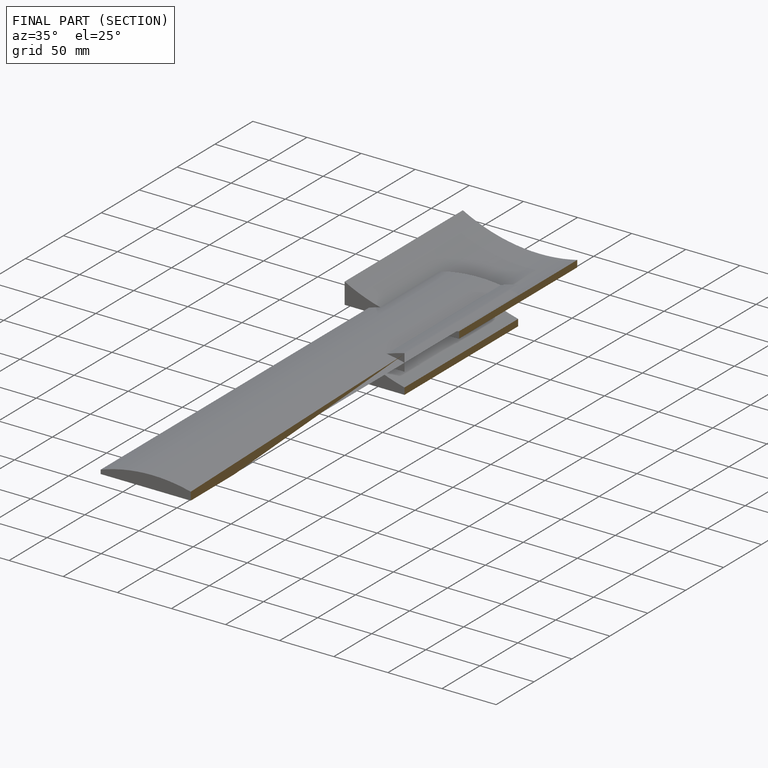
[diagram: finished part — half-section view (interior)]
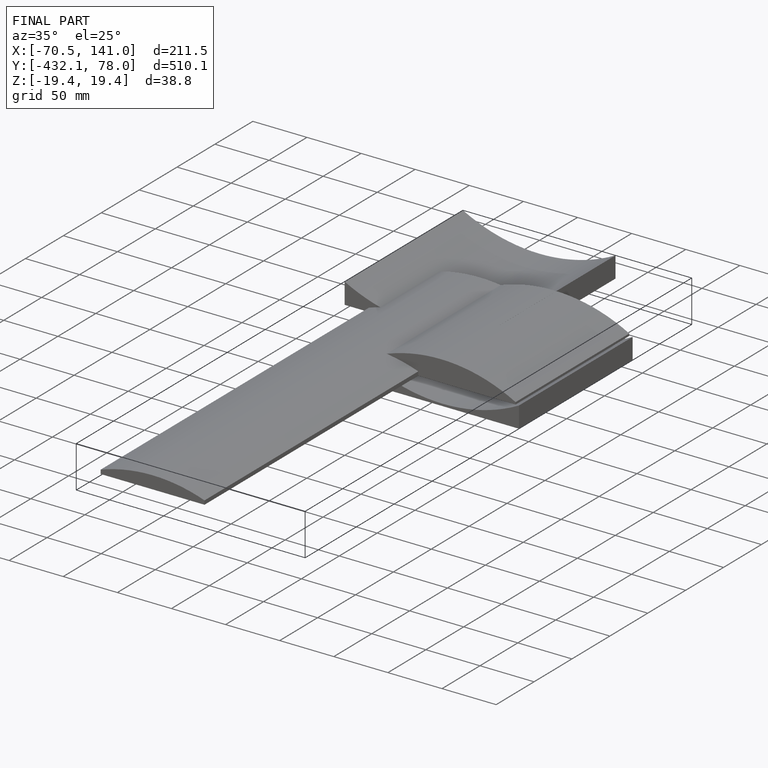
[diagram: finished part — iso view with bounding-box wireframe]
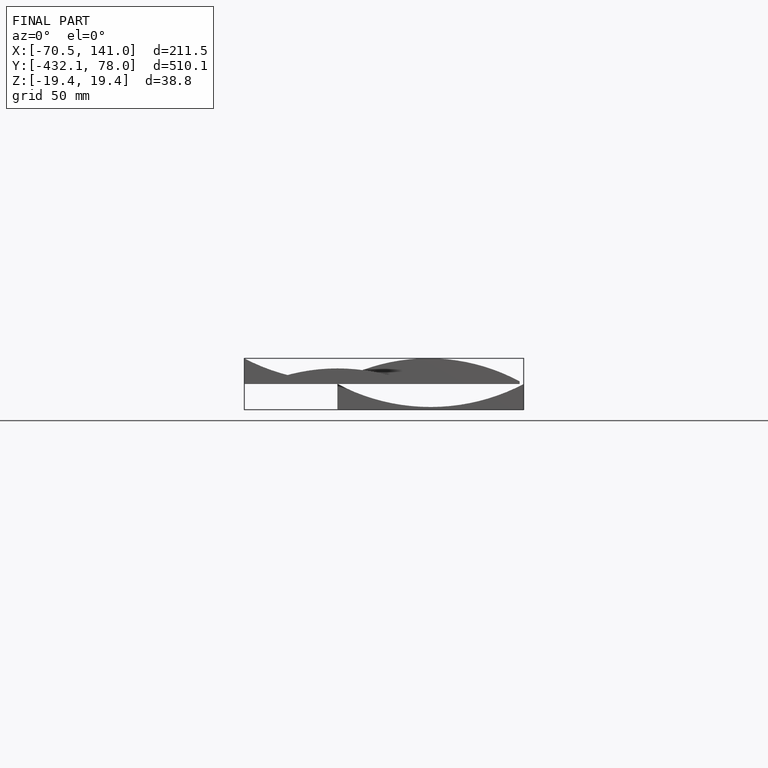
[diagram: finished part — front view with bounding-box wireframe]
